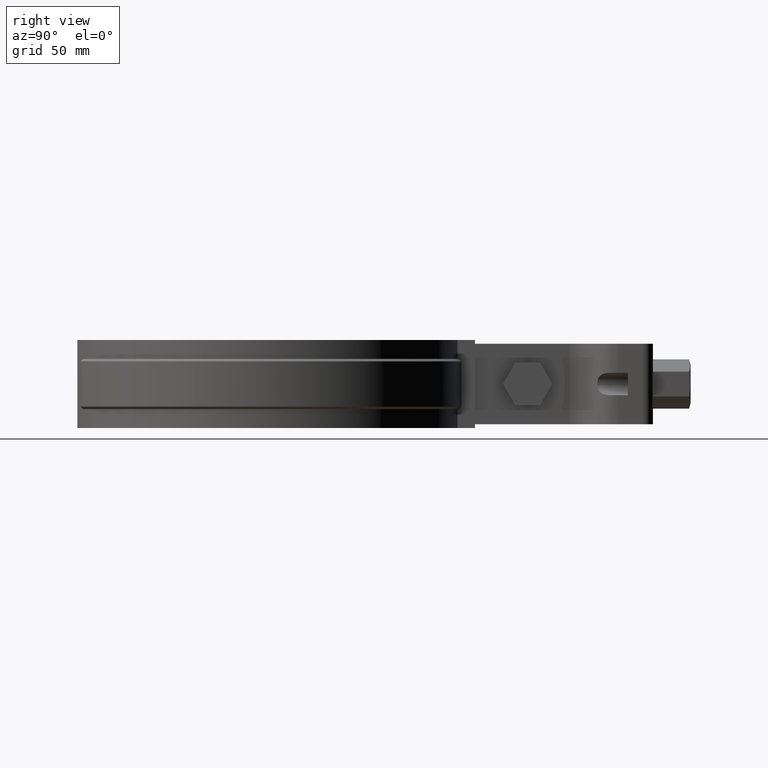
[diagram: clean part render]
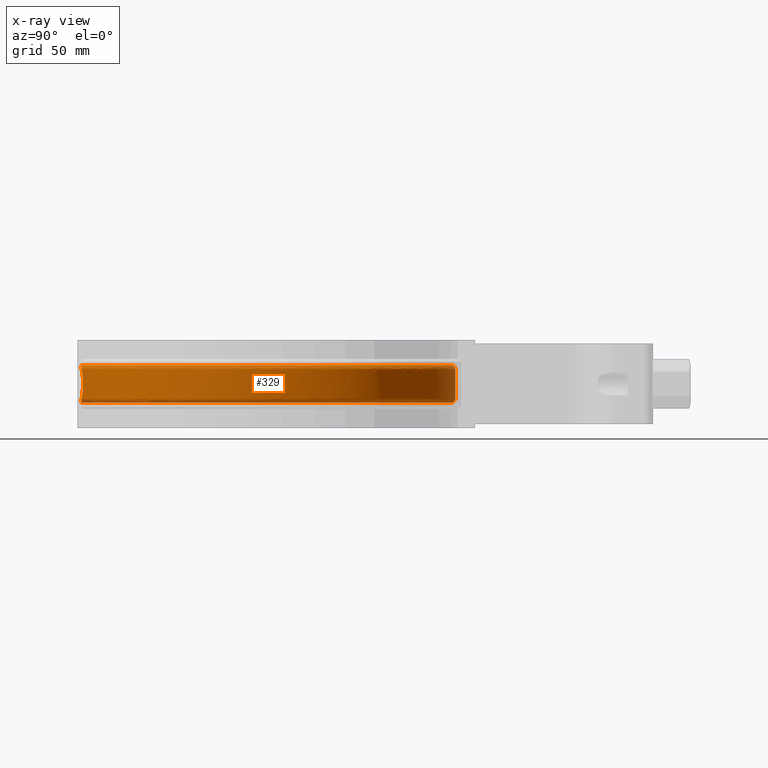
[diagram: x-ray — body ghosted, one internal face saturated and labeled with its STEP entity id]
A machine part, right view, then the same camera in x-ray: the body is ghosted and one INTERNAL B-rep face — a face not visible from any outside direction — is saturated and labeled: STEP entity #329.
In plain terms, the highlighted face is a freeform B-spline surface patch.
Its self-contained STEP definition (entity closure, byte-faithful):
#329 = ADVANCED_FACE( '', ( #522, #523 ), #524, .F. );
#522 = FACE_OUTER_BOUND( '', #903, .T. );
#523 = FACE_BOUND( '', #904, .T. );
#524 = B_SPLINE_SURFACE_WITH_KNOTS( '', 3, 3, ( ( #905, #906, #907, #908, #909, #910, #911, #912, #913, #914, #915, #916, #917, #918, #919, #920, #921 ), ( #922, #923, #924, #925, #926, #927, #928, #929, #930, #931, #932, #933, #934, #935, #936, #937, #938 ), ( #939, #940, #941, #942, #943, #944, #945, #946, #947, #948, #949, #950, #951, #952, #953, #954, #955 ), ( #956, #957, #958, #959, #960, #961, #962, #963, #964, #965, #966, #967, #968, #969, #970, #971, #972 ), ( #973, #974, #975, #976, #977, #978, #979, #980, #981, #982, #983, #984, #985, #986, #987, #988, #989 ), ( #990, #991, #992, #993, #994, #995, #996, #997, #998, #999, #1000, #1001, #1002, #1003, #1004, #1005, #1006 ), ( #1007, #1008, #1009, #1010, #1011, #1012, #1013, #1014, #1015, #1016, #1017, #1018, #1019, #1020, #1021, #1022, #1023 ), ( #1024, #1025, #1026, #1027, #1028, #1029, #1030, #1031, #1032, #1033, #1034, #1035, #1036, #1037, #1038, #1039, #1040 ), ( #1041, #1042, #1043, #1044, #1045, #1046, #1047, #1048, #1049, #1050, #1051, #1052, #1053, #1054, #1055, #1056, #1057 ), ( #1058, #1059, #1060, #1061, #1062, #1063, #1064, #1065, #1066, #1067, #1068, #1069, #1070, #1071, #1072, #1073, #1074 ), ( #1075, #1076, #1077, #1078, #1079, #1080, #1081, #1082, #1083, #1084, #1085, #1086, #1087, #1088, #1089, #1090, #1091 ), ( #1092, #1093, #1094, #1095, #1096, #1097, #1098, #1099, #1100, #1101, #1102, #1103, #1104, #1105, #1106, #1107, #1108 ), ( #1109, #1110, #1111, #1112, #1113, #1114, #1115, #1116, #1117, #1118, #1119, #1120, #1121, #1122, #1123, #1124, #1125 ), ( #1126, #1127, #1128, #1129, #1130, #1131, #1132, #1133, #1134, #1135, #1136, #1137, #1138, #1139, #1140, #1141, #1142 ), ( #1143, #1144, #1145, #1146, #1147, #1148, #1149, #1150, #1151, #1152, #1153, #1154, #1155, #1156, #1157, #1158, #1159 ), ( #1160, #1161, #1162, #1163, #1164, #1165, #1166, #1167, #1168, #1169, #1170, #1171, #1172, #1173, #1174, #1175, #1176 ), ( #1177, #1178, #1179, #1180, #1181, #1182, #1183, #1184, #1185, #1186, #1187, #1188, #1189, #1190, #1191, #1192, #1193 ), ( #1194, #1195, #1196, #1197, #1198, #1199, #1200, #1201, #1202, #1203, #1204, #1205, #1206, #1207, #1208, #1209, #1210 ), ( #1211, #1212, #1213, #1214, #1215, #1216, #1217, #1218, #1219, #1220, #1221, #1222, #1223, #1224, #1225, #1226, #1227 ), ( #1228, #1229, #1230, #1231, #1232, #1233, #1234, #1235, #1236, #1237, #1238, #1239, #1240, #1241, #1242, #1243, #1244 ), ( #1245, #1246, #1247, #1248, #1249, #1250, #1251, #1252, #1253, #1254, #1255, #1256, #1257, #1258, #1259, #1260, #1261 ), ( #1262, #1263, #1264, #1265, #1266, #1267, #1268, #1269, #1270, #1271, #1272, #1273, #1274, #1275, #1276, #1277, #1278 ) ), .UNSPECIFIED., .F., .F., .F., ( 4, 3, 1, 1, 1, 3, 3, 1, 1, 1, 3, 4 ), ( 4, 1, 1, 1, 1, 1, 1, 1, 1, 1, 1, 1, 1, 1, 4 ), ( 0.000000000000000, 0.0909090909090909, 0.181818181818182, 0.272727272727273, 0.363636363636364, 0.454545454545455, 0.545454545454545, 0.636363636363636, 0.727272727272727, 0.818181818181818, 0.909090909090909, 1.00000000000000 ), ( 2.93927675343958, 4.00000000000000, 5.00000000000000, 6.00000000000000, 7.00000000000000, 8.00000000000000, 9.00000000000000, 10.0000000000000, 11.0000000000000, 12.0000000000000, 13.0000000000000, 14.0000000000000, 15.0000000000000, 16.0000000000000, 17.0000000000000 ), .UNSPECIFIED. );
#903 = EDGE_LOOP( '', ( #2505, #2506, #2507, #2508, #2509, #2510, #2511, #2512, #2513, #2514, #2515, #2516 ) );
#904 = EDGE_LOOP( '', ( #2517, #2518, #2519, #2520, #2521, #2522, #2523, #2524, #2525, #2526 ) );
#905 = CARTESIAN_POINT( '', ( -4.61408278539141, 70.8624171730569, -26.5000000000000 ) );
#906 = CARTESIAN_POINT( '', ( -15.6052744550126, 70.1472941383269, -26.5000000000000 ) );
#907 = CARTESIAN_POINT( '', ( -36.6617611339115, 63.6807156917407, -26.5000000000000 ) );
#908 = CARTESIAN_POINT( '', ( -60.4969619260765, 41.4439888512903, -26.5000000000000 ) );
#909 = CARTESIAN_POINT( '', ( -72.3802217986226, 11.7823910310343, -26.5000000000000 ) );
#910 = CARTESIAN_POINT( '', ( -70.5192778564034, -20.1169506966164, -26.5000000000000 ) );
#911 = CARTESIAN_POINT( '', ( -55.2698527498513, -48.1966426214465, -26.5000000000000 ) );
#912 = CARTESIAN_POINT( '', ( -29.5266031782373, -67.1256351168169, -26.5000000000000 ) );
#913 = CARTESIAN_POINT( '', ( 1.82261616750916, -73.3099539517817, -26.5000000000000 ) );
#914 = CARTESIAN_POINT( '', ( 32.8257890665060, -65.5754380062658, -26.5000000000000 ) );
#915 = CARTESIAN_POINT( '', ( 57.5965972162112, -45.3906027783521, -26.5000000000000 ) );
#916 = CARTESIAN_POINT( '', ( 71.4318266744617, -16.5877122940593, -26.5000000000000 ) );
#917 = CARTESIAN_POINT( '', ( 71.7052861561752, 15.3643128019334, -26.5000000000000 ) );
#918 = CARTESIAN_POINT( '', ( 58.3627979269206, 44.4001782011631, -26.5000000000000 ) );
#919 = CARTESIAN_POINT( '', ( 33.9460318401430, 65.0025488558879, -26.5000000000000 ) );
#920 = CARTESIAN_POINT( '', ( 13.3549246916386, 70.5185901661193, -26.5000000000000 ) );
#921 = CARTESIAN_POINT( '', ( 2.97799040788178, 70.9496140061351, -26.5000000000000 ) );
#922 = CARTESIAN_POINT( '', ( -4.58317847313393, 72.0000761796201, -25.3619288125423 ) );
#923 = CARTESIAN_POINT( '', ( -15.7546006070130, 71.2897577749478, -25.3619288125423 ) );
#924 = CARTESIAN_POINT( '', ( -37.1520462050843, 64.7507535133130, -25.3619288125423 ) );
#925 = CARTESIAN_POINT( '', ( -61.4020090744283, 42.1941559292932, -25.3619288125423 ) );
#926 = CARTESIAN_POINT( '', ( -73.5179681451020, 12.0766046186175, -25.3619288125423 ) );
#927 = CARTESIAN_POINT( '', ( -71.6742434158291, -20.3345508184463, -25.3619288125423 ) );
#928 = CARTESIAN_POINT( '', ( -56.2226090221052, -48.8847422760475, -25.3619288125423 ) );
#929 = CARTESIAN_POINT( '', ( -30.0962954527366, -68.1535897998528, -25.3619288125423 ) );
#930 = CARTESIAN_POINT( '', ( 1.74416083732159, -74.4825932048340, -25.3619288125423 ) );
#931 = CARTESIAN_POINT( '', ( 33.2534664050969, -66.6701216190303, -25.3619288125423 ) );
#932 = CARTESIAN_POINT( '', ( 58.4491977296035, -46.1994896762213, -25.3619288125423 ) );
#933 = CARTESIAN_POINT( '', ( 72.5475111608291, -16.9572300654301, -25.3619288125423 ) );
#934 = CARTESIAN_POINT( '', ( 72.8720854100233, 15.5043409607623, -25.3619288125423 ) );
#935 = CARTESIAN_POINT( '', ( 59.3597111215706, 45.0230947830519, -25.3619288125423 ) );
#936 = CARTESIAN_POINT( '', ( 34.5818006473789, 65.9903515204438, -25.3619288125423 ) );
#937 = CARTESIAN_POINT( '', ( 13.6743882856698, 71.6239562096893, -25.3619288125423 ) );
#938 = CARTESIAN_POINT( '', ( 3.12959689003598, 72.0775419747086, -25.3619288125423 ) );
#939 = CARTESIAN_POINT( '', ( -4.55227416087646, 73.1377351861834, -24.2238576250846 ) );
#940 = CARTESIAN_POINT( '', ( -15.9039267590134, 72.4322214115685, -24.2238576250846 ) );
#941 = CARTESIAN_POINT( '', ( -37.6423312762570, 65.8207913348853, -24.2238576250846 ) );
#942 = CARTESIAN_POINT( '', ( -62.3070562227800, 42.9443230072962, -24.2238576250846 ) );
#943 = CARTESIAN_POINT( '', ( -74.6557144915813, 12.3708182062007, -24.2238576250846 ) );
#944 = CARTESIAN_POINT( '', ( -72.8292089752548, -20.5521509402763, -24.2238576250846 ) );
#945 = CARTESIAN_POINT( '', ( -57.1753652943592, -49.5728419306485, -24.2238576250846 ) );
#946 = CARTESIAN_POINT( '', ( -30.6659877272358, -69.1815444828886, -24.2238576250846 ) );
#947 = CARTESIAN_POINT( '', ( 1.66570550713401, -75.6552324578863, -24.2238576250846 ) );
#948 = CARTESIAN_POINT( '', ( 33.6811437436878, -67.7648052317949, -24.2238576250846 ) );
#949 = CARTESIAN_POINT( '', ( 59.3017982429958, -47.0083765740904, -24.2238576250846 ) );
#950 = CARTESIAN_POINT( '', ( 73.6631956471966, -17.3267478368009, -24.2238576250846 ) );
#951 = CARTESIAN_POINT( '', ( 74.0388846638715, 15.6443691195912, -24.2238576250846 ) );
#952 = CARTESIAN_POINT( '', ( 60.3566243162205, 45.6460113649407, -24.2238576250846 ) );
#953 = CARTESIAN_POINT( '', ( 35.2175694546148, 66.9781541849998, -24.2238576250846 ) );
#954 = CARTESIAN_POINT( '', ( 13.9938518797011, 72.7293222532593, -24.2238576250846 ) );
#955 = CARTESIAN_POINT( '', ( 3.28120337219018, 73.2054699432820, -24.2238576250846 ) );
#956 = CARTESIAN_POINT( '', ( -4.52136984861898, 74.2753941927466, -23.0857864376269 ) );
#957 = CARTESIAN_POINT( '', ( -16.0532529110138, 73.5746850481894, -23.0857864376269 ) );
#958 = CARTESIAN_POINT( '', ( -38.1326163474298, 66.8908291564576, -23.0857864376269 ) );
#959 = CARTESIAN_POINT( '', ( -63.2121033711318, 43.6944900852991, -23.0857864376269 ) );
#960 = CARTESIAN_POINT( '', ( -75.7934608380606, 12.6650317937838, -23.0857864376269 ) );
#961 = CARTESIAN_POINT( '', ( -73.9841745346804, -20.7697510621062, -23.0857864376269 ) );
#962 = CARTESIAN_POINT( '', ( -58.1281215666131, -50.2609415852494, -23.0857864376269 ) );
#963 = CARTESIAN_POINT( '', ( -31.2356800017350, -70.2094991659245, -23.0857864376269 ) );
#964 = CARTESIAN_POINT( '', ( 1.58725017694644, -76.8278717109386, -23.0857864376269 ) );
#965 = CARTESIAN_POINT( '', ( 34.1088210822787, -68.8594888445595, -23.0857864376269 ) );
#966 = CARTESIAN_POINT( '', ( 60.1543987563881, -47.8172634719595, -23.0857864376269 ) );
#967 = CARTESIAN_POINT( '', ( 74.7788801335641, -17.6962656081718, -23.0857864376269 ) );
#968 = CARTESIAN_POINT( '', ( 75.2056839177196, 15.7843972784200, -23.0857864376269 ) );
#969 = CARTESIAN_POINT( '', ( 61.3535375108704, 46.2689279468294, -23.0857864376269 ) );
#970 = CARTESIAN_POINT( '', ( 35.8533382618507, 67.9659568495558, -23.0857864376269 ) );
#971 = CARTESIAN_POINT( '', ( 14.3133154737323, 73.8346882968293, -23.0857864376269 ) );
#972 = CARTESIAN_POINT( '', ( 3.43280985434438, 74.3333979118554, -23.0857864376269 ) );
#973 = CARTESIAN_POINT( '', ( -4.51885640188860, 74.3679199634714, -22.9932271442431 ) );
#974 = CARTESIAN_POINT( '', ( -16.0653976021941, 73.6676015793235, -22.9932271442431 ) );
#975 = CARTESIAN_POINT( '', ( -38.1724912166335, 66.9778552983634, -22.9932271442431 ) );
#976 = CARTESIAN_POINT( '', ( -63.2857108268460, 43.7555011498309, -22.9932271442431 ) );
#977 = CARTESIAN_POINT( '', ( -75.8859937121379, 12.6889601754797, -22.9932271442431 ) );
#978 = CARTESIAN_POINT( '', ( -74.0781078467977, -20.7874484730755, -22.9932271442431 ) );
#979 = CARTESIAN_POINT( '', ( -58.2056092038529, -50.3169047082152, -22.9932271442431 ) );
#980 = CARTESIAN_POINT( '', ( -31.2820130562531, -70.2931026875152, -22.9932271442431 ) );
#981 = CARTESIAN_POINT( '', ( 1.58086940744416, -76.9232424239949, -22.9932271442431 ) );
#982 = CARTESIAN_POINT( '', ( 34.1436040665880, -68.9485194278771, -22.9932271442431 ) );
#983 = CARTESIAN_POINT( '', ( 60.2237407289536, -47.8830502175685, -22.9932271442431 ) );
#984 = CARTESIAN_POINT( '', ( 74.8696187172621, -17.7263184767338, -22.9932271442431 ) );
#985 = CARTESIAN_POINT( '', ( 75.3005796638268, 15.7957857641122, -22.9932271442431 ) );
#986 = CARTESIAN_POINT( '', ( 61.4346164292006, 46.3195897325702, -22.9932271442431 ) );
#987 = CARTESIAN_POINT( '', ( 35.9050453186691, 68.0462948087639, -22.9932271442431 ) );
#988 = CARTESIAN_POINT( '', ( 14.3392974376474, 73.9245876819037, -22.9932271442431 ) );
#989 = CARTESIAN_POINT( '', ( 3.44514000470337, 74.4251322575709, -22.9932271442431 ) );
#990 = CARTESIAN_POINT( '', ( -4.51432461421930, 74.5347455189103, -22.7898759680773 ) );
#991 = CARTESIAN_POINT( '', ( -16.0872946891993, 73.8351316824989, -22.7898759680773 ) );
#992 = CARTESIAN_POINT( '', ( -38.2443862913878, 67.1347649284850, -22.7898759680773 ) );
#993 = CARTESIAN_POINT( '', ( -63.4184263350528, 43.8655051481623, -22.7898759680773 ) );
#994 = CARTESIAN_POINT( '', ( -76.0528320750436, 12.7321034590850, -22.7898759680773 ) );
#995 = CARTESIAN_POINT( '', ( -74.2474712235673, -20.8193572093299, -22.7898759680773 ) );
#996 = CARTESIAN_POINT( '', ( -58.3453207460634, -50.4178071811124, -22.7898759680773 ) );
#997 = CARTESIAN_POINT( '', ( -31.3655523501665, -70.4438412743625, -22.7898759680773 ) );
#998 = CARTESIAN_POINT( '', ( 1.56936477032515, -77.0951974593712, -22.7898759680773 ) );
#999 = CARTESIAN_POINT( '', ( 34.2063183853315, -69.1090431003269, -22.7898759680773 ) );
#1000 = CARTESIAN_POINT( '', ( 60.3487654977055, -48.0016648509918, -22.7898759680773 ) );
#1001 = CARTESIAN_POINT( '', ( 75.0332219437640, -17.7805043154586, -22.7898759680773 ) );
#1002 = CARTESIAN_POINT( '', ( 75.4716783256278, 15.8163193996207, -22.7898759680772 ) );
#1003 = CARTESIAN_POINT( '', ( 61.5808031129628, 46.4109338033032, -22.7898759680773 ) );
#1004 = CARTESIAN_POINT( '', ( 35.9982740311268, 68.1911455304897, -22.7898759680773 ) );
#1005 = CARTESIAN_POINT( '', ( 14.3861433653017, 74.0866778188585, -22.7898759680773 ) );
#1006 = CARTESIAN_POINT( '', ( 3.46737147779644, 74.5905308601105, -22.7898759680773 ) );
#1007 = CARTESIAN_POINT( '', ( -4.50927348117781, 74.7206893752282, -22.4418734431229 ) );
#1008 = CARTESIAN_POINT( '', ( -16.1117011944806, 74.0218608281134, -22.4418734431229 ) );
#1009 = CARTESIAN_POINT( '', ( -38.3245205814545, 67.3096564889625, -22.4418734431229 ) );
#1010 = CARTESIAN_POINT( '', ( -63.5663511138689, 43.9881156655158, -22.4418734431229 ) );
#1011 = CARTESIAN_POINT( '', ( -76.2387902065711, 12.7801909868422, -22.4418734431229 ) );
#1012 = CARTESIAN_POINT( '', ( -74.4362437369434, -20.8549227043990, -22.4418734431229 ) );
#1013 = CARTESIAN_POINT( '', ( -58.5010433082476, -50.5302731331854, -22.4418734431229 ) );
#1014 = CARTESIAN_POINT( '', ( -31.4586652933452, -70.6118545865949, -22.4418734431229 ) );
#1015 = CARTESIAN_POINT( '', ( 1.55654169543223, -77.2868586368632, -22.4418734431229 ) );
#1016 = CARTESIAN_POINT( '', ( 34.2762197996733, -69.2879628743815, -22.4418734431229 ) );
#1017 = CARTESIAN_POINT( '', ( 60.4881181740735, -48.1338727869788, -22.4418734431229 ) );
#1018 = CARTESIAN_POINT( '', ( 75.2155741904674, -17.8408998812567, -22.4418734431229 ) );
#1019 = CARTESIAN_POINT( '', ( 75.6623849886592, 15.8392062011100, -22.4418734431229 ) );
#1020 = CARTESIAN_POINT( '', ( 61.7437428715003, 46.5127459550398, -22.4418734431229 ) );
#1021 = CARTESIAN_POINT( '', ( 36.1021868055715, 68.3525962250027, -22.4418734431229 ) );
#1022 = CARTESIAN_POINT( '', ( 14.4383578621629, 74.2673435751163, -22.4418734431229 ) );
#1023 = CARTESIAN_POINT( '', ( 3.49215068999615, 74.7748842339382, -22.4418734431229 ) );
#1024 = CARTESIAN_POINT( '', ( -4.50616300880884, 74.8351930365859, -22.0642686993349 ) );
#1025 = CARTESIAN_POINT( '', ( -16.1267306462249, 74.1368480682324, -22.0642686993349 ) );
#1026 = CARTESIAN_POINT( '', ( -38.3738670336291, 67.4173541801464, -22.0642686993349 ) );
#1027 = CARTESIAN_POINT( '', ( -63.6574427428982, 44.0636188493045, -22.0642686993349 ) );
#1028 = CARTESIAN_POINT( '', ( -76.3533026585596, 12.8098031402248, -22.0642686993349 ) );
#1029 = CARTESIAN_POINT( '', ( -74.5524892767171, -20.8768238281256, -22.0642686993349 ) );
#1030 = CARTESIAN_POINT( '', ( -58.5969367885657, -50.5995293245189, -22.0642686993349 ) );
#1031 = CARTESIAN_POINT( '', ( -31.5160039606445, -70.7153166734226, -22.0642686993349 ) );
#1032 = CARTESIAN_POINT( '', ( 1.54864528490176, -77.4048830072165, -22.0642686993349 ) );
#1033 = CARTESIAN_POINT( '', ( 34.3192648780894, -69.3981411272383, -22.0642686993349 ) );
#1034 = CARTESIAN_POINT( '', ( 60.5739311284787, -48.2152860319811, -22.0642686993349 ) );
#1035 = CARTESIAN_POINT( '', ( 75.3278661495449, -17.8780912870422, -22.0642686993349 ) );
#1036 = CARTESIAN_POINT( '', ( 75.7798215719099, 15.8532998238797, -22.0642686993349 ) );
#1037 = CARTESIAN_POINT( '', ( 61.8440806793890, 46.5754415685191, -22.0642686993349 ) );
#1038 = CARTESIAN_POINT( '', ( 36.1661759761276, 68.4520170717926, -22.0642686993349 ) );
#1039 = CARTESIAN_POINT( '', ( 14.4705113905718, 74.3785969985052, -22.0642686993349 ) );
#1040 = CARTESIAN_POINT( '', ( 3.50740965352747, 74.8884084810143, -22.0642686993349 ) );
#1041 = CARTESIAN_POINT( '', ( -4.50546282348372, 74.8609684731900, -21.8024714832808 ) );
#1042 = CARTESIAN_POINT( '', ( -16.1301138627616, 74.1627323612132, -21.8024714832808 ) );
#1043 = CARTESIAN_POINT( '', ( -38.3849752054952, 67.4415975534900, -21.8024714832808 ) );
#1044 = CARTESIAN_POINT( '', ( -63.6779479955807, 44.0806150527802, -21.8024714832808 ) );
#1045 = CARTESIAN_POINT( '', ( -76.3790800739854, 12.8164690072650, -21.8024714832808 ) );
#1046 = CARTESIAN_POINT( '', ( -74.5786568202298, -20.8817538977800, -21.8024714832808 ) );
#1047 = CARTESIAN_POINT( '', ( -58.6185229657532, -50.6151192938525, -21.8024714832808 ) );
#1048 = CARTESIAN_POINT( '', ( -31.5289112263722, -70.7386065877217, -21.8024714832808 ) );
#1049 = CARTESIAN_POINT( '', ( 1.54686775720863, -77.4314509757836, -21.8024714832808 ) );
#1050 = CARTESIAN_POINT( '', ( 34.3289545742675, -69.4229428893652, -21.8024714832808 ) );
#1051 = CARTESIAN_POINT( '', ( 60.5932481209648, -48.2336126244272, -21.8024714832808 ) );
#1052 = CARTESIAN_POINT( '', ( 75.3531437191705, -17.8864632876462, -21.8024714832808 ) );
#1053 = CARTESIAN_POINT( '', ( 75.8062572261997, 15.8564723799003, -21.8024714832808 ) );
#1054 = CARTESIAN_POINT( '', ( 61.8666673004241, 46.5895547138232, -21.8024714832808 ) );
#1055 = CARTESIAN_POINT( '', ( 36.1805803086132, 68.4743972795795, -21.8024714832808 ) );
#1056 = CARTESIAN_POINT( '', ( 14.4777493358328, 74.4036407877390, -21.8024714832808 ) );
#1057 = CARTESIAN_POINT( '', ( 3.51084453449531, 74.9139634457974, -21.8024714832808 ) );
#1058 = CARTESIAN_POINT( '', ( -4.50546282348372, 74.8609684731900, -21.6715728752538 ) );
#1059 = CARTESIAN_POINT( '', ( -16.1301138627616, 74.1627323612132, -21.6715728752538 ) );
#1060 = CARTESIAN_POINT( '', ( -38.3849752054952, 67.4415975534900, -21.6715728752538 ) );
#1061 = CARTESIAN_POINT( '', ( -63.6779479955807, 44.0806150527802, -21.6715728752538 ) );
#1062 = CARTESIAN_POINT( '', ( -76.3790800739854, 12.8164690072650, -21.6715728752538 ) );
#1063 = CARTESIAN_POINT( '', ( -74.5786568202298, -20.8817538977800, -21.6715728752538 ) );
#1064 = CARTESIAN_POINT( '', ( -58.6185229657532, -50.6151192938525, -21.6715728752538 ) );
#1065 = CARTESIAN_POINT( '', ( -31.5289112263722, -70.7386065877217, -21.6715728752538 ) );
#1066 = CARTESIAN_POINT( '', ( 1.54686775720863, -77.4314509757836, -21.6715728752538 ) );
#1067 = CARTESIAN_POINT( '', ( 34.3289545742675, -69.4229428893652, -21.6715728752538 ) );
#1068 = CARTESIAN_POINT( '', ( 60.5932481209648, -48.2336126244272, -21.6715728752538 ) );
#1069 = CARTESIAN_POINT( '', ( 75.3531437191705, -17.8864632876462, -21.6715728752538 ) );
#1070 = CARTESIAN_POINT( '', ( 75.8062572261997, 15.8564723799003, -21.6715728752538 ) );
#1071 = CARTESIAN_POINT( '', ( 61.8666673004241, 46.5895547138232, -21.6715728752538 ) );
#1072 = CARTESIAN_POINT( '', ( 36.1805803086132, 68.4743972795795, -21.6715728752538 ) );
#1073 = CARTESIAN_POINT( '', ( 14.4777493358328, 74.4036407877390, -21.6715728752538 ) );
#1074 = CARTESIAN_POINT( '', ( 3.51084453449531, 74.9139634457974, -21.6715728752538 ) );
#1075 = CARTESIAN_POINT( '', ( -4.50546282348372, 74.8609684731900, -17.8905242917513 ) );
#1076 = CARTESIAN_POINT( '', ( -16.1301138627616, 74.1627323612132, -17.8905242917513 ) );
#1077 = CARTESIAN_POINT( '', ( -38.3849752054952, 67.4415975534900, -17.8905242917513 ) );
#1078 = CARTESIAN_POINT( '', ( -63.6779479955807, 44.0806150527802, -17.8905242917513 ) );
#1079 = CARTESIAN_POINT( '', ( -76.3790800739854, 12.8164690072650, -17.8905242917513 ) );
#1080 = CARTESIAN_POINT( '', ( -74.5786568202298, -20.8817538977800, -17.8905242917513 ) );
#1081 = CARTESIAN_POINT( '', ( -58.6185229657532, -50.6151192938525, -17.8905242917513 ) );
#1082 = CARTESIAN_POINT( '', ( -31.5289112263722, -70.7386065877217, -17.8905242917513 ) );
#1083 = CARTESIAN_POINT( '', ( 1.54686775720863, -77.4314509757836, -17.8905242917513 ) );
#1084 = CARTESIAN_POINT( '', ( 34.3289545742675, -69.4229428893652, -17.8905242917513 ) );
#1085 = CARTESIAN_POINT( '', ( 60.5932481209648, -48.2336126244272, -17.8905242917513 ) );
#1086 = CARTESIAN_POINT( '', ( 75.3531437191705, -17.8864632876462, -17.8905242917513 ) );
#1087 = CARTESIAN_POINT( '', ( 75.8062572261997, 15.8564723799003, -17.8905242917512 ) );
#1088 = CARTESIAN_POINT( '', ( 61.8666673004241, 46.5895547138232, -17.8905242917513 ) );
#1089 = CARTESIAN_POINT( '', ( 36.1805803086132, 68.4743972795795, -17.8905242917513 ) );
#1090 = CARTESIAN_POINT( '', ( 14.4777493358328, 74.4036407877390, -17.8905242917513 ) );
#1091 = CARTESIAN_POINT( '', ( 3.51084453449531, 74.9139634457974, -17.8905242917513 ) );
#1092 = CARTESIAN_POINT( '', ( -4.50546282348372, 74.8609684731900, -14.1094757082487 ) );
#1093 = CARTESIAN_POINT( '', ( -16.1301138627616, 74.1627323612132, -14.1094757082487 ) );
#1094 = CARTESIAN_POINT( '', ( -38.3849752054952, 67.4415975534900, -14.1094757082487 ) );
#1095 = CARTESIAN_POINT( '', ( -63.6779479955807, 44.0806150527802, -14.1094757082487 ) );
#1096 = CARTESIAN_POINT( '', ( -76.3790800739854, 12.8164690072650, -14.1094757082487 ) );
#1097 = CARTESIAN_POINT( '', ( -74.5786568202298, -20.8817538977800, -14.1094757082487 ) );
#1098 = CARTESIAN_POINT( '', ( -58.6185229657532, -50.6151192938525, -14.1094757082487 ) );
#1099 = CARTESIAN_POINT( '', ( -31.5289112263722, -70.7386065877217, -14.1094757082487 ) );
#1100 = CARTESIAN_POINT( '', ( 1.54686775720863, -77.4314509757836, -14.1094757082487 ) );
#1101 = CARTESIAN_POINT( '', ( 34.3289545742675, -69.4229428893652, -14.1094757082487 ) );
#1102 = CARTESIAN_POINT( '', ( 60.5932481209648, -48.2336126244272, -14.1094757082487 ) );
#1103 = CARTESIAN_POINT( '', ( 75.3531437191705, -17.8864632876462, -14.1094757082487 ) );
#1104 = CARTESIAN_POINT( '', ( 75.8062572261997, 15.8564723799003, -14.1094757082487 ) );
#1105 = CARTESIAN_POINT( '', ( 61.8666673004241, 46.5895547138232, -14.1094757082487 ) );
#1106 = CARTESIAN_POINT( '', ( 36.1805803086132, 68.4743972795795, -14.1094757082487 ) );
#1107 = CARTESIAN_POINT( '', ( 14.4777493358328, 74.4036407877390, -14.1094757082487 ) );
#1108 = CARTESIAN_POINT( '', ( 3.51084453449531, 74.9139634457974, -14.1094757082487 ) );
#1109 = CARTESIAN_POINT( '', ( -4.50546282348372, 74.8609684731900, -10.3284271247462 ) );
#1110 = CARTESIAN_POINT( '', ( -16.1301138627616, 74.1627323612132, -10.3284271247462 ) );
#1111 = CARTESIAN_POINT( '', ( -38.3849752054952, 67.4415975534900, -10.3284271247462 ) );
#1112 = CARTESIAN_POINT( '', ( -63.6779479955807, 44.0806150527802, -10.3284271247462 ) );
#1113 = CARTESIAN_POINT( '', ( -76.3790800739854, 12.8164690072650, -10.3284271247462 ) );
#1114 = CARTESIAN_POINT( '', ( -74.5786568202298, -20.8817538977800, -10.3284271247462 ) );
#1115 = CARTESIAN_POINT( '', ( -58.6185229657532, -50.6151192938525, -10.3284271247462 ) );
#1116 = CARTESIAN_POINT( '', ( -31.5289112263722, -70.7386065877217, -10.3284271247462 ) );
#1117 = CARTESIAN_POINT( '', ( 1.54686775720863, -77.4314509757836, -10.3284271247462 ) );
#1118 = CARTESIAN_POINT( '', ( 34.3289545742675, -69.4229428893652, -10.3284271247462 ) );
#1119 = CARTESIAN_POINT( '', ( 60.5932481209648, -48.2336126244272, -10.3284271247462 ) );
#1120 = CARTESIAN_POINT( '', ( 75.3531437191705, -17.8864632876462, -10.3284271247462 ) );
#1121 = CARTESIAN_POINT( '', ( 75.8062572261997, 15.8564723799003, -10.3284271247462 ) );
#1122 = CARTESIAN_POINT( '', ( 61.8666673004241, 46.5895547138232, -10.3284271247462 ) );
#1123 = CARTESIAN_POINT( '', ( 36.1805803086132, 68.4743972795795, -10.3284271247462 ) );
#1124 = CARTESIAN_POINT( '', ( 14.4777493358328, 74.4036407877390, -10.3284271247462 ) );
#1125 = CARTESIAN_POINT( '', ( 3.51084453449531, 74.9139634457974, -10.3284271247462 ) );
#1126 = CARTESIAN_POINT( '', ( -4.50546282348372, 74.8609684731900, -10.1975285167192 ) );
#1127 = CARTESIAN_POINT( '', ( -16.1301138627616, 74.1627323612132, -10.1975285167192 ) );
#1128 = CARTESIAN_POINT( '', ( -38.3849752054952, 67.4415975534900, -10.1975285167192 ) );
#1129 = CARTESIAN_POINT( '', ( -63.6779479955807, 44.0806150527802, -10.1975285167192 ) );
#1130 = CARTESIAN_POINT( '', ( -76.3790800739854, 12.8164690072650, -10.1975285167192 ) );
#1131 = CARTESIAN_POINT( '', ( -74.5786568202298, -20.8817538977800, -10.1975285167192 ) );
#1132 = CARTESIAN_POINT( '', ( -58.6185229657532, -50.6151192938525, -10.1975285167192 ) );
#1133 = CARTESIAN_POINT( '', ( -31.5289112263722, -70.7386065877217, -10.1975285167192 ) );
#1134 = CARTESIAN_POINT( '', ( 1.54686775720863, -77.4314509757836, -10.1975285167192 ) );
#1135 = CARTESIAN_POINT( '', ( 34.3289545742675, -69.4229428893652, -10.1975285167192 ) );
#1136 = CARTESIAN_POINT( '', ( 60.5932481209648, -48.2336126244272, -10.1975285167192 ) );
#1137 = CARTESIAN_POINT( '', ( 75.3531437191705, -17.8864632876462, -10.1975285167192 ) );
#1138 = CARTESIAN_POINT( '', ( 75.8062572261997, 15.8564723799003, -10.1975285167192 ) );
#1139 = CARTESIAN_POINT( '', ( 61.8666673004241, 46.5895547138232, -10.1975285167192 ) );
#1140 = CARTESIAN_POINT( '', ( 36.1805803086132, 68.4743972795795, -10.1975285167192 ) );
#1141 = CARTESIAN_POINT( '', ( 14.4777493358328, 74.4036407877390, -10.1975285167192 ) );
#1142 = CARTESIAN_POINT( '', ( 3.51084453449531, 74.9139634457974, -10.1975285167192 ) );
#1143 = CARTESIAN_POINT( '', ( -4.50616300880884, 74.8351930365859, -9.93573130066510 ) );
#1144 = CARTESIAN_POINT( '', ( -16.1267306462249, 74.1368480682324, -9.93573130066510 ) );
#1145 = CARTESIAN_POINT( '', ( -38.3738670336291, 67.4173541801463, -9.93573130066510 ) );
#1146 = CARTESIAN_POINT( '', ( -63.6574427428982, 44.0636188493045, -9.93573130066510 ) );
#1147 = CARTESIAN_POINT( '', ( -76.3533026585596, 12.8098031402248, -9.93573130066510 ) );
#1148 = CARTESIAN_POINT( '', ( -74.5524892767171, -20.8768238281256, -9.93573130066510 ) );
#1149 = CARTESIAN_POINT( '', ( -58.5969367885657, -50.5995293245189, -9.93573130066510 ) );
#1150 = CARTESIAN_POINT( '', ( -31.5160039606445, -70.7153166734226, -9.93573130066510 ) );
#1151 = CARTESIAN_POINT( '', ( 1.54864528490176, -77.4048830072165, -9.93573130066510 ) );
#1152 = CARTESIAN_POINT( '', ( 34.3192648780894, -69.3981411272383, -9.93573130066510 ) );
#1153 = CARTESIAN_POINT( '', ( 60.5739311284787, -48.2152860319811, -9.93573130066510 ) );
#1154 = CARTESIAN_POINT( '', ( 75.3278661495449, -17.8780912870422, -9.93573130066510 ) );
#1155 = CARTESIAN_POINT( '', ( 75.7798215719099, 15.8532998238797, -9.93573130066509 ) );
#1156 = CARTESIAN_POINT( '', ( 61.8440806793889, 46.5754415685191, -9.93573130066510 ) );
#1157 = CARTESIAN_POINT( '', ( 36.1661759761276, 68.4520170717926, -9.93573130066510 ) );
#1158 = CARTESIAN_POINT( '', ( 14.4705113905718, 74.3785969985052, -9.93573130066510 ) );
#1159 = CARTESIAN_POINT( '', ( 3.50740965352747, 74.8884084810143, -9.93573130066510 ) );
#1160 = CARTESIAN_POINT( '', ( -4.50927348117781, 74.7206893752281, -9.55812655687708 ) );
#1161 = CARTESIAN_POINT( '', ( -16.1117011944806, 74.0218608281134, -9.55812655687708 ) );
#1162 = CARTESIAN_POINT( '', ( -38.3245205814545, 67.3096564889625, -9.55812655687708 ) );
#1163 = CARTESIAN_POINT( '', ( -63.5663511138689, 43.9881156655158, -9.55812655687707 ) );
#1164 = CARTESIAN_POINT( '', ( -76.2387902065711, 12.7801909868422, -9.55812655687708 ) );
#1165 = CARTESIAN_POINT( '', ( -74.4362437369434, -20.8549227043990, -9.55812655687708 ) );
#1166 = CARTESIAN_POINT( '', ( -58.5010433082476, -50.5302731331854, -9.55812655687707 ) );
#1167 = CARTESIAN_POINT( '', ( -31.4586652933452, -70.6118545865948, -9.55812655687708 ) );
#1168 = CARTESIAN_POINT( '', ( 1.55654169543223, -77.2868586368632, -9.55812655687708 ) );
#1169 = CARTESIAN_POINT( '', ( 34.2762197996733, -69.2879628743815, -9.55812655687708 ) );
#1170 = CARTESIAN_POINT( '', ( 60.4881181740735, -48.1338727869788, -9.55812655687708 ) );
#1171 = CARTESIAN_POINT( '', ( 75.2155741904675, -17.8408998812567, -9.55812655687707 ) );
#1172 = CARTESIAN_POINT( '', ( 75.6623849886592, 15.8392062011100, -9.55812655687707 ) );
#1173 = CARTESIAN_POINT( '', ( 61.7437428715003, 46.5127459550398, -9.55812655687708 ) );
#1174 = CARTESIAN_POINT( '', ( 36.1021868055715, 68.3525962250027, -9.55812655687708 ) );
#1175 = CARTESIAN_POINT( '', ( 14.4383578621629, 74.2673435751163, -9.55812655687708 ) );
#1176 = CARTESIAN_POINT( '', ( 3.49215068999615, 74.7748842339382, -9.55812655687708 ) );
#1177 = CARTESIAN_POINT( '', ( -4.51432461421930, 74.5347455189103, -9.21012403192273 ) );
#1178 = CARTESIAN_POINT( '', ( -16.0872946891993, 73.8351316824988, -9.21012403192273 ) );
#1179 = CARTESIAN_POINT( '', ( -38.2443862913878, 67.1347649284850, -9.21012403192273 ) );
#1180 = CARTESIAN_POINT( '', ( -63.4184263350528, 43.8655051481623, -9.21012403192273 ) );
#1181 = CARTESIAN_POINT( '', ( -76.0528320750436, 12.7321034590850, -9.21012403192273 ) );
#1182 = CARTESIAN_POINT( '', ( -74.2474712235672, -20.8193572093299, -9.21012403192274 ) );
#1183 = CARTESIAN_POINT( '', ( -58.3453207460634, -50.4178071811124, -9.21012403192273 ) );
#1184 = CARTESIAN_POINT( '', ( -31.3655523501665, -70.4438412743624, -9.21012403192273 ) );
#1185 = CARTESIAN_POINT( '', ( 1.56936477032515, -77.0951974593712, -9.21012403192273 ) );
#1186 = CARTESIAN_POINT( '', ( 34.2063183853315, -69.1090431003269, -9.21012403192273 ) );
#1187 = CARTESIAN_POINT( '', ( 60.3487654977054, -48.0016648509918, -9.21012403192273 ) );
#1188 = CARTESIAN_POINT( '', ( 75.0332219437640, -17.7805043154586, -9.21012403192273 ) );
#1189 = CARTESIAN_POINT( '', ( 75.4716783256278, 15.8163193996207, -9.21012403192272 ) );
#1190 = CARTESIAN_POINT( '', ( 61.5808031129628, 46.4109338033032, -9.21012403192274 ) );
#1191 = CARTESIAN_POINT( '', ( 35.9982740311268, 68.1911455304896, -9.21012403192273 ) );
#1192 = CARTESIAN_POINT( '', ( 14.3861433653017, 74.0866778188585, -9.21012403192273 ) );
#1193 = CARTESIAN_POINT( '', ( 3.46737147779644, 74.5905308601105, -9.21012403192273 ) );
#1194 = CARTESIAN_POINT( '', ( -4.51885640188860, 74.3679199634714, -9.00677285575691 ) );
#1195 = CARTESIAN_POINT( '', ( -16.0653976021941, 73.6676015793235, -9.00677285575690 ) );
#1196 = CARTESIAN_POINT( '', ( -38.1724912166335, 66.9778552983634, -9.00677285575691 ) );
#1197 = CARTESIAN_POINT( '', ( -63.2857108268460, 43.7555011498309, -9.00677285575690 ) );
#1198 = CARTESIAN_POINT( '', ( -75.8859937121379, 12.6889601754797, -9.00677285575690 ) );
#1199 = CARTESIAN_POINT( '', ( -74.0781078467977, -20.7874484730755, -9.00677285575691 ) );
#1200 = CARTESIAN_POINT( '', ( -58.2056092038529, -50.3169047082152, -9.00677285575690 ) );
#1201 = CARTESIAN_POINT( '', ( -31.2820130562530, -70.2931026875152, -9.00677285575691 ) );
#1202 = CARTESIAN_POINT( '', ( 1.58086940744416, -76.9232424239949, -9.00677285575690 ) );
#1203 = CARTESIAN_POINT( '', ( 34.1436040665880, -68.9485194278771, -9.00677285575691 ) );
#1204 = CARTESIAN_POINT( '', ( 60.2237407289536, -47.8830502175685, -9.00677285575691 ) );
#1205 = CARTESIAN_POINT( '', ( 74.8696187172621, -17.7263184767338, -9.00677285575690 ) );
#1206 = CARTESIAN_POINT( '', ( 75.3005796638268, 15.7957857641122, -9.00677285575690 ) );
#1207 = CARTESIAN_POINT( '', ( 61.4346164292006, 46.3195897325701, -9.00677285575691 ) );
#1208 = CARTESIAN_POINT( '', ( 35.9050453186691, 68.0462948087639, -9.00677285575691 ) );
#1209 = CARTESIAN_POINT( '', ( 14.3392974376474, 73.9245876819036, -9.00677285575691 ) );
#1210 = CARTESIAN_POINT( '', ( 3.44514000470337, 74.4251322575709, -9.00677285575691 ) );
#1211 = CARTESIAN_POINT( '', ( -4.52136984861898, 74.2753941927466, -8.91421356237311 ) );
#1212 = CARTESIAN_POINT( '', ( -16.0532529110138, 73.5746850481894, -8.91421356237311 ) );
#1213 = CARTESIAN_POINT( '', ( -38.1326163474298, 66.8908291564576, -8.91421356237311 ) );
#1214 = CARTESIAN_POINT( '', ( -63.2121033711318, 43.6944900852991, -8.91421356237310 ) );
#1215 = CARTESIAN_POINT( '', ( -75.7934608380606, 12.6650317937838, -8.91421356237311 ) );
#1216 = CARTESIAN_POINT( '', ( -73.9841745346804, -20.7697510621062, -8.91421356237311 ) );
#1217 = CARTESIAN_POINT( '', ( -58.1281215666131, -50.2609415852494, -8.91421356237310 ) );
#1218 = CARTESIAN_POINT( '', ( -31.2356800017350, -70.2094991659245, -8.91421356237311 ) );
#1219 = CARTESIAN_POINT( '', ( 1.58725017694644, -76.8278717109386, -8.91421356237311 ) );
#1220 = CARTESIAN_POINT( '', ( 34.1088210822787, -68.8594888445595, -8.91421356237311 ) );
#1221 = CARTESIAN_POINT( '', ( 60.1543987563881, -47.8172634719595, -8.91421356237311 ) );
#1222 = CARTESIAN_POINT( '', ( 74.7788801335641, -17.6962656081718, -8.91421356237310 ) );
#1223 = CARTESIAN_POINT( '', ( 75.2056839177196, 15.7843972784200, -8.91421356237310 ) );
#1224 = CARTESIAN_POINT( '', ( 61.3535375108704, 46.2689279468294, -8.91421356237311 ) );
#1225 = CARTESIAN_POINT( '', ( 35.8533382618507, 67.9659568495558, -8.91421356237311 ) );
#1226 = CARTESIAN_POINT( '', ( 14.3133154737323, 73.8346882968293, -8.91421356237311 ) );
#1227 = CARTESIAN_POINT( '', ( 3.43280985434438, 74.3333979118554, -8.91421356237311 ) );
#1228 = CARTESIAN_POINT( '', ( -4.55227416087646, 73.1377351861834, -7.77614237491540 ) );
#1229 = CARTESIAN_POINT( '', ( -15.9039267590134, 72.4322214115686, -7.77614237491540 ) );
#1230 = CARTESIAN_POINT( '', ( -37.6423312762570, 65.8207913348853, -7.77614237491540 ) );
#1231 = CARTESIAN_POINT( '', ( -62.3070562227800, 42.9443230072962, -7.77614237491540 ) );
#1232 = CARTESIAN_POINT( '', ( -74.6557144915813, 12.3708182062007, -7.77614237491540 ) );
#1233 = CARTESIAN_POINT( '', ( -72.8292089752548, -20.5521509402763, -7.77614237491540 ) );
#1234 = CARTESIAN_POINT( '', ( -57.1753652943592, -49.5728419306485, -7.77614237491540 ) );
#1235 = CARTESIAN_POINT( '', ( -30.6659877272358, -69.1815444828886, -7.77614237491540 ) );
#1236 = CARTESIAN_POINT( '', ( 1.66570550713401, -75.6552324578863, -7.77614237491540 ) );
#1237 = CARTESIAN_POINT( '', ( 33.6811437436878, -67.7648052317949, -7.77614237491540 ) );
#1238 = CARTESIAN_POINT( '', ( 59.3017982429958, -47.0083765740904, -7.77614237491540 ) );
#1239 = CARTESIAN_POINT( '', ( 73.6631956471966, -17.3267478368010, -7.77614237491540 ) );
#1240 = CARTESIAN_POINT( '', ( 74.0388846638715, 15.6443691195912, -7.77614237491540 ) );
#1241 = CARTESIAN_POINT( '', ( 60.3566243162205, 45.6460113649407, -7.77614237491541 ) );
#1242 = CARTESIAN_POINT( '', ( 35.2175694546148, 66.9781541849998, -7.77614237491540 ) );
#1243 = CARTESIAN_POINT( '', ( 13.9938518797011, 72.7293222532593, -7.77614237491540 ) );
#1244 = CARTESIAN_POINT( '', ( 3.28120337219018, 73.2054699432820, -7.77614237491540 ) );
#1245 = CARTESIAN_POINT( '', ( -4.58317847313393, 72.0000761796201, -6.63807118745771 ) );
#1246 = CARTESIAN_POINT( '', ( -15.7546006070130, 71.2897577749478, -6.63807118745771 ) );
#1247 = CARTESIAN_POINT( '', ( -37.1520462050843, 64.7507535133130, -6.63807118745771 ) );
#1248 = CARTESIAN_POINT( '', ( -61.4020090744283, 42.1941559292932, -6.63807118745770 ) );
#1249 = CARTESIAN_POINT( '', ( -73.5179681451019, 12.0766046186175, -6.63807118745771 ) );
#1250 = CARTESIAN_POINT( '', ( -71.6742434158291, -20.3345508184463, -6.63807118745771 ) );
#1251 = CARTESIAN_POINT( '', ( -56.2226090221052, -48.8847422760475, -6.63807118745770 ) );
#1252 = CARTESIAN_POINT( '', ( -30.0962954527366, -68.1535897998528, -6.63807118745771 ) );
#1253 = CARTESIAN_POINT( '', ( 1.74416083732159, -74.4825932048340, -6.63807118745770 ) );
#1254 = CARTESIAN_POINT( '', ( 33.2534664050969, -66.6701216190303, -6.63807118745771 ) );
#1255 = CARTESIAN_POINT( '', ( 58.4491977296035, -46.1994896762213, -6.63807118745771 ) );
#1256 = CARTESIAN_POINT( '', ( 72.5475111608292, -16.9572300654301, -6.63807118745770 ) );
#1257 = CARTESIAN_POINT( '', ( 72.8720854100233, 15.5043409607623, -6.63807118745770 ) );
#1258 = CARTESIAN_POINT( '', ( 59.3597111215706, 45.0230947830519, -6.63807118745771 ) );
#1259 = CARTESIAN_POINT( '', ( 34.5818006473789, 65.9903515204438, -6.63807118745771 ) );
#1260 = CARTESIAN_POINT( '', ( 13.6743882856698, 71.6239562096893, -6.63807118745771 ) );
#1261 = CARTESIAN_POINT( '', ( 3.12959689003598, 72.0775419747086, -6.63807118745771 ) );
#1262 = CARTESIAN_POINT( '', ( -4.61408278539141, 70.8624171730569, -5.50000000000001 ) );
#1263 = CARTESIAN_POINT( '', ( -15.6052744550126, 70.1472941383270, -5.50000000000001 ) );
#1264 = CARTESIAN_POINT( '', ( -36.6617611339115, 63.6807156917407, -5.50000000000001 ) );
#1265 = CARTESIAN_POINT( '', ( -60.4969619260765, 41.4439888512903, -5.50000000000001 ) );
#1266 = CARTESIAN_POINT( '', ( -72.3802217986227, 11.7823910310343, -5.50000000000001 ) );
#1267 = CARTESIAN_POINT( '', ( -70.5192778564034, -20.1169506966164, -5.50000000000001 ) );
#1268 = CARTESIAN_POINT( '', ( -55.2698527498513, -48.1966426214466, -5.50000000000001 ) );
#1269 = CARTESIAN_POINT( '', ( -29.5266031782373, -67.1256351168169, -5.50000000000001 ) );
#1270 = CARTESIAN_POINT( '', ( 1.82261616750916, -73.3099539517817, -5.50000000000001 ) );
#1271 = CARTESIAN_POINT( '', ( 32.8257890665060, -65.5754380062658, -5.50000000000001 ) );
#1272 = CARTESIAN_POINT( '', ( 57.5965972162112, -45.3906027783521, -5.50000000000001 ) );
#1273 = CARTESIAN_POINT( '', ( 71.4318266744617, -16.5877122940593, -5.50000000000001 ) );
#1274 = CARTESIAN_POINT( '', ( 71.7052861561752, 15.3643128019334, -5.50000000000001 ) );
#1275 = CARTESIAN_POINT( '', ( 58.3627979269206, 44.4001782011632, -5.50000000000001 ) );
#1276 = CARTESIAN_POINT( '', ( 33.9460318401430, 65.0025488558879, -5.50000000000001 ) );
#1277 = CARTESIAN_POINT( '', ( 13.3549246916386, 70.5185901661193, -5.50000000000001 ) );
#1278 = CARTESIAN_POINT( '', ( 2.97799040788178, 70.9496140061351, -5.50000000000001 ) );
#2505 = ORIENTED_EDGE( '', *, *, #5037, .T. );
#2506 = ORIENTED_EDGE( '', *, *, #5038, .T. );
#2507 = ORIENTED_EDGE( '', *, *, #5039, .T. );
#2508 = ORIENTED_EDGE( '', *, *, #5040, .T. );
#2509 = ORIENTED_EDGE( '', *, *, #5041, .T. );
#2510 = ORIENTED_EDGE( '', *, *, #5042, .T. );
#2511 = ORIENTED_EDGE( '', *, *, #5043, .T. );
#2512 = ORIENTED_EDGE( '', *, *, #5044, .T. );
#2513 = ORIENTED_EDGE( '', *, *, #5045, .T. );
#2514 = ORIENTED_EDGE( '', *, *, #5046, .T. );
#2515 = ORIENTED_EDGE( '', *, *, #5047, .T. );
#2516 = ORIENTED_EDGE( '', *, *, #5048, .T. );
#2517 = ORIENTED_EDGE( '', *, *, #5049, .T. );
#2518 = ORIENTED_EDGE( '', *, *, #5014, .T. );
#2519 = ORIENTED_EDGE( '', *, *, #5013, .T. );
#2520 = ORIENTED_EDGE( '', *, *, #5012, .T. );
#2521 = ORIENTED_EDGE( '', *, *, #5011, .T. );
#2522 = ORIENTED_EDGE( '', *, *, #5050, .T. );
#2523 = ORIENTED_EDGE( '', *, *, #5031, .T. );
#2524 = ORIENTED_EDGE( '', *, *, #5030, .T. );
#2525 = ORIENTED_EDGE( '', *, *, #5029, .T. );
#2526 = ORIENTED_EDGE( '', *, *, #5028, .T. );
#5011 = EDGE_CURVE( '', #5535, #5533, #5536, .T. );
#5012 = EDGE_CURVE( '', #5537, #5535, #5538, .T. );
#5013 = EDGE_CURVE( '', #5539, #5537, #5540, .T. );
#5014 = EDGE_CURVE( '', #5541, #5539, #5542, .T. );
#5028 = EDGE_CURVE( '', #5563, #5561, #5564, .T. );
#5029 = EDGE_CURVE( '', #5565, #5563, #5566, .T. );
#5030 = EDGE_CURVE( '', #5567, #5565, #5568, .T. );
#5031 = EDGE_CURVE( '', #5569, #5567, #5570, .T. );
#5037 = EDGE_CURVE( '', #5577, #5578, #5579, .T. );
#5038 = EDGE_CURVE( '', #5578, #5580, #5581, .T. );
#5039 = EDGE_CURVE( '', #5580, #5582, #5583, .T. );
#5040 = EDGE_CURVE( '', #5582, #5584, #5585, .T. );
#5041 = EDGE_CURVE( '', #5584, #5586, #5587, .T. );
#5042 = EDGE_CURVE( '', #5586, #5588, #5589, .T. );
#5043 = EDGE_CURVE( '', #5588, #5590, #5591, .T. );
#5044 = EDGE_CURVE( '', #5590, #5592, #5593, .T. );
#5045 = EDGE_CURVE( '', #5592, #5594, #5595, .T. );
#5046 = EDGE_CURVE( '', #5594, #5596, #5597, .T. );
#5047 = EDGE_CURVE( '', #5596, #5598, #5599, .T. );
#5048 = EDGE_CURVE( '', #5598, #5577, #5600, .T. );
#5049 = EDGE_CURVE( '', #5561, #5541, #5601, .T. );
#5050 = EDGE_CURVE( '', #5533, #5569, #5602, .T. );
#5533 = VERTEX_POINT( '', #6514 );
#5535 = VERTEX_POINT( '', #6517 );
#5536 = B_SPLINE_CURVE_WITH_KNOTS( '', 3, ( #6518, #6519, #6520, #6521, #6522, #6523, #6524, #6525, #6526, #6527 ), .UNSPECIFIED., .F., .F., ( 4, 2, 2, 2, 4 ), ( 0.000000000000000, 0.00109227146752519, 0.00218454293505039, 0.00327681440257558, 0.00436908587010077 ), .UNSPECIFIED. );
#5537 = VERTEX_POINT( '', #6528 );
#5538 = B_SPLINE_CURVE_WITH_KNOTS( '', 3, ( #6529, #6530, #6531, #6532, #6533, #6534, #6535, #6536, #6537, #6538, #6539, #6540, #6541, #6542 ), .UNSPECIFIED., .F., .F., ( 4, 2, 2, 2, 2, 2, 4 ), ( 1.39857877853494E-017, 0.00165540790206190, 0.00248311185309285, 0.00331081580412379, 0.00413851975515473, 0.00496622370618567, 0.00662163160824756 ), .UNSPECIFIED. );
#5539 = VERTEX_POINT( '', #6543 );
#5540 = B_SPLINE_CURVE_WITH_KNOTS( '', 3, ( #6544, #6545, #6546, #6547, #6548, #6549, #6550, #6551, #6552, #6553, #6554, #6555, #6556, #6557 ), .UNSPECIFIED., .F., .F., ( 4, 2, 2, 2, 2, 2, 4 ), ( 4.54020582529247E-017, 0.00165610983830218, 0.00248416475745324, 0.00331221967660431, 0.00414027459575538, 0.00496832951490644, 0.00662443935320859 ), .UNSPECIFIED. );
#5541 = VERTEX_POINT( '', #6558 );
#5542 = B_SPLINE_CURVE_WITH_KNOTS( '', 3, ( #6559, #6560, #6561, #6562, #6563, #6564, #6565, #6566, #6567, #6568 ), .UNSPECIFIED., .F., .F., ( 4, 2, 2, 2, 4 ), ( 2.62511296561892E-017, 0.00109232621244541, 0.00218465242489079, 0.00327697863733617, 0.00436930484978155 ), .UNSPECIFIED. );
#5561 = VERTEX_POINT( '', #6805 );
#5563 = VERTEX_POINT( '', #6808 );
#5564 = B_SPLINE_CURVE_WITH_KNOTS( '', 3, ( #6809, #6810, #6811, #6812, #6813, #6814, #6815, #6816, #6817, #6818 ), .UNSPECIFIED., .F., .F., ( 4, 2, 2, 2, 4 ), ( 0.000000000000000, 0.00109225790506567, 0.00218451581013134, 0.00327677371519701, 0.00436903162026267 ), .UNSPECIFIED. );
#5565 = VERTEX_POINT( '', #6819 );
#5566 = B_SPLINE_CURVE_WITH_KNOTS( '', 3, ( #6820, #6821, #6822, #6823, #6824, #6825, #6826, #6827, #6828, #6829, #6830, #6831, #6832, #6833 ), .UNSPECIFIED., .F., .F., ( 4, 2, 2, 2, 2, 2, 4 ), ( 7.15244812269100E-018, 0.00165544484279203, 0.00248316726418803, 0.00331088968558404, 0.00413861210698004, 0.00496633452837604, 0.00662177937116805 ), .UNSPECIFIED. );
#5567 = VERTEX_POINT( '', #6834 );
#5568 = B_SPLINE_CURVE_WITH_KNOTS( '', 3, ( #6835, #6836, #6837, #6838, #6839, #6840, #6841, #6842, #6843, #6844, #6845, #6846, #6847, #6848 ), .UNSPECIFIED., .F., .F., ( 4, 2, 2, 2, 2, 2, 4 ), ( 0.000000000000000, 0.00165613066684558, 0.00248419600026837, 0.00331226133369116, 0.00414032666711395, 0.00496839200053674, 0.00662452266738232 ), .UNSPECIFIED. );
#5569 = VERTEX_POINT( '', #6849 );
#5570 = B_SPLINE_CURVE_WITH_KNOTS( '', 3, ( #6850, #6851, #6852, #6853, #6854, #6855, #6856, #6857, #6858, #6859 ), .UNSPECIFIED., .F., .F., ( 4, 2, 2, 2, 4 ), ( 1.73472347597681E-018, 0.00109233382343829, 0.00218466764687658, 0.00327700147031487, 0.00436933529375317 ), .UNSPECIFIED. );
#5577 = VERTEX_POINT( '', #6934 );
#5578 = VERTEX_POINT( '', #6935 );
#5579 = B_SPLINE_CURVE_WITH_KNOTS( '', 3, ( #6936, #6937, #6938, #6939, #6940, #6941, #6942, #6943, #6944, #6945, #6946, #6947, #6948, #6949, #6950, #6951, #6952, #6953, #6954, #6955, #6956, #6957, #6958, #6959, #6960, #6961, #6962, #6963, #6964, #6965, #6966, #6967, #6968, #6969, #6970, #6971, #6972, #6973, #6974, #6975, #6976, #6977, #6978, #6979, #6980, #6981, #6982, #6983, #6984, #6985, #6986, #6987, #6988, #6989, #6990, #6991, #6992, #6993, #6994, #6995, #6996, #6997, #6998, #6999, #7000, #7001, #7002, #7003, #7004, #7005, #7006, #7007, #7008, #7009, #7010, #7011, #7012, #7013, #7014, #7015, #7016, #7017, #7018, #7019, #7020, #7021, #7022, #7023, #7024, #7025, #7026, #7027, #7028, #7029, #7030, #7031, #7032, #7033, #7034, #7035, #7036, #7037, #7038, #7039, #7040, #7041, #7042, #7043, #7044, #7045, #7046, #7047, #7048, #7049, #7050, #7051, #7052, #7053, #7054, #7055, #7056, #7057, #7058, #7059, #7060, #7061, #7062, #7063, #7064, #7065, #7066, #7067, #7068, #7069 ), .UNSPECIFIED., .F., .F., ( 4, 2, 2, 2, 2, 2, 2, 2, 2, 2, 2, 2, 2, 2, 2, 2, 2, 2, 2, 2, 2, 2, 2, 2, 2, 2, 2, 2, 2, 2, 2, 2, 2, 2, 2, 2, 2, 2, 2, 2, 2, 2, 2, 2, 2, 2, 2, 2, 2, 2, 2, 2, 2, 2, 2, 2, 2, 2, 2, 2, 2, 2, 2, 2, 2, 2, 4 ), ( 1.73472347597681E-018, 0.00705430745483279, 0.0141086149096656, 0.0176357686370820, 0.0211629223644983, 0.0282172298193311, 0.0423258447289966, 0.0458529984564130, 0.0493801521838294, 0.0564344596386622, 0.0705430745483278, 0.0846516894579934, 0.0917059969128261, 0.0952331506402425, 0.0987603043676589, 0.112868919277324, 0.119923226732157, 0.123450380459574, 0.126977534186990, 0.141086149096656, 0.144613302824072, 0.148140456551488, 0.155194764006321, 0.169303378915987, 0.172830532643403, 0.176357686370820, 0.183411993825652, 0.190466301280485, 0.193993455007901, 0.197520608735318, 0.211629223644983, 0.218683531099816, 0.222210684827232, 0.225737838554649, 0.239846453464314, 0.246900760919147, 0.253955068373980, 0.268063683283645, 0.271590837011062, 0.275117990738478, 0.282172298193311, 0.289226605648144, 0.296280913102977, 0.299808066830393, 0.303335220557809, 0.310389528012642, 0.317443835467475, 0.320970989194891, 0.324498142922307, 0.338606757831973, 0.345661065286806, 0.349188219014222, 0.352715372741638, 0.366823987651304, 0.370351141378720, 0.373878295106136, 0.380932602560969, 0.387986910015802, 0.395041217470635, 0.398568371198051, 0.402095524925467, 0.409149832380300, 0.423258447289965, 0.437367062199631, 0.444421369654463, 0.447948523381880, 0.451475677109296 ), .UNSPECIFIED. );
#5580 = VERTEX_POINT( '', #7070 );
#5581 = B_SPLINE_CURVE_WITH_KNOTS( '', 3, ( #7071, #7072, #7073, #7074, #7075, #7076, #7077, #7078 ), .UNSPECIFIED., .F., .F., ( 4, 2, 2, 4 ), ( 8.84538885469324E-018, 0.000374271540583450, 0.000748543081166891, 0.00149708616233377 ), .UNSPECIFIED. );
#5582 = VERTEX_POINT( '', #7079 );
#5583 = B_SPLINE_CURVE_WITH_KNOTS( '', 3, ( #7080, #7081, #7082, #7083, #7084, #7085, #7086, #7087, #7088, #7089 ), .UNSPECIFIED., .F., .F., ( 4, 2, 2, 2, 4 ), ( 7.35980840008019E-018, 0.000430487889146857, 0.000860975778293706, 0.00129146366744055, 0.00172195155658740 ), .UNSPECIFIED. );
#5584 = VERTEX_POINT( '', #7090 );
#5585 = B_SPLINE_CURVE_WITH_KNOTS( '', 3, ( #7091, #7092, #7093, #7094 ), .UNSPECIFIED., .F., .F., ( 4, 4 ), ( 0.000000000000000, 0.0113431328693538 ), .UNSPECIFIED. );
#5586 = VERTEX_POINT( '', #7095 );
#5587 = B_SPLINE_CURVE_WITH_KNOTS( '', 3, ( #7096, #7097, #7098, #7099, #7100, #7101, #7102, #7103, #7104, #7105 ), .UNSPECIFIED., .F., .F., ( 4, 2, 2, 2, 4 ), ( 1.04444184020130E-017, 0.000430531208512815, 0.000861062417025620, 0.00129159362553842, 0.00172212483405123 ), .UNSPECIFIED. );
#5588 = VERTEX_POINT( '', #7106 );
#5589 = B_SPLINE_CURVE_WITH_KNOTS( '', 3, ( #7107, #7108, #7109, #7110, #7111, #7112, #7113, #7114 ), .UNSPECIFIED., .F., .F., ( 4, 2, 2, 4 ), ( 0.000000000000000, 0.000749783305709907, 0.00112467495856486, 0.00149956661141982 ), .UNSPECIFIED. );
#5590 = VERTEX_POINT( '', #7115 );
#5591 = B_SPLINE_CURVE_WITH_KNOTS( '', 3, ( #7116, #7117, #7118, #7119, #7120, #7121, #7122, #7123, #7124, #7125, #7126, #7127, #7128, #7129, #7130, #7131, #7132, #7133, #7134, #7135, #7136, #7137, #7138, #7139, #7140, #7141, #7142, #7143, #7144, #7145, #7146, #7147, #7148, #7149, #7150, #7151, #7152, #7153, #7154, #7155, #7156, #7157, #7158, #7159, #7160, #7161, #7162, #7163, #7164, #7165, #7166, #7167, #7168, #7169, #7170, #7171, #7172, #7173, #7174, #7175, #7176, #7177, #7178, #7179, #7180, #7181, #7182, #7183, #7184, #7185, #7186, #7187, #7188, #7189, #7190, #7191, #7192, #7193, #7194, #7195, #7196, #7197, #7198, #7199, #7200, #7201, #7202, #7203, #7204, #7205, #7206, #7207, #7208, #7209, #7210, #7211, #7212, #7213, #7214, #7215, #7216, #7217, #7218, #7219, #7220, #7221, #7222, #7223, #7224, #7225, #7226, #7227, #7228, #7229, #7230, #7231, #7232, #7233, #7234, #7235, #7236, #7237, #7238, #7239, #7240, #7241, #7242, #7243, #7244, #7245, #7246, #7247, #7248, #7249, #7250, #7251, #7252, #7253 ), .UNSPECIFIED., .F., .F., ( 4, 2, 2, 2, 2, 2, 2, 2, 2, 2, 2, 2, 2, 2, 2, 2, 2, 2, 2, 2, 2, 2, 2, 2, 2, 2, 2, 2, 2, 2, 2, 2, 2, 2, 2, 2, 2, 2, 2, 2, 2, 2, 2, 2, 2, 2, 2, 2, 2, 2, 2, 2, 2, 2, 2, 2, 2, 2, 2, 2, 2, 2, 2, 2, 2, 2, 2, 2, 4 ), ( 1.73472347597681E-018, 0.00705430651106776, 0.0141086130221355, 0.0176357662776694, 0.0211629195332033, 0.0282172260442710, 0.0423258390664065, 0.0458529923219404, 0.0493801455774743, 0.0564344520885420, 0.0634887585996097, 0.0705430651106774, 0.0846516781328129, 0.0917059846438806, 0.0952331378994144, 0.0987602911549483, 0.112868904177084, 0.119923210688151, 0.123450363943685, 0.126977517199219, 0.141086130221355, 0.144613283476888, 0.148140436732422, 0.155194743243490, 0.162249049754558, 0.169303356265625, 0.172830509521159, 0.176357662776693, 0.183411969287761, 0.190466275798829, 0.193993429054362, 0.197520582309896, 0.211629195332032, 0.218683501843099, 0.222210655098633, 0.225737808354167, 0.239846421376303, 0.246900727887370, 0.253955034398438, 0.261009340909506, 0.268063647420573, 0.271590800676107, 0.275117953931641, 0.282172260442709, 0.296280873464844, 0.299808026720378, 0.303335179975912, 0.310389486486980, 0.317443792998047, 0.320970946253581, 0.324498099509115, 0.338606712531251, 0.345661019042319, 0.349188172297852, 0.352715325553386, 0.359769632064454, 0.366823938575522, 0.370351091831056, 0.373878245086590, 0.380932551597657, 0.395041164619793, 0.398568317875327, 0.402095471130860, 0.409149777641928, 0.423258390664064, 0.437367003686199, 0.444421310197267, 0.447948463452801, 0.451475616708334 ), .UNSPECIFIED. );
#5592 = VERTEX_POINT( '', #7254 );
#5593 = B_SPLINE_CURVE_WITH_KNOTS( '', 3, ( #7255, #7256, #7257, #7258, #7259, #7260, #7261, #7262 ), .UNSPECIFIED., .F., .F., ( 4, 2, 2, 4 ), ( 1.43048962453820E-017, 0.000374260451727466, 0.000748520903454917, 0.00149704180690981 ), .UNSPECIFIED. );
#5594 = VERTEX_POINT( '', #7263 );
#5595 = B_SPLINE_CURVE_WITH_KNOTS( '', 3, ( #7264, #7265, #7266, #7267, #7268, #7269, #7270, #7271, #7272, #7273 ), .UNSPECIFIED., .F., .F., ( 4, 2, 2, 2, 4 ), ( 2.06898048032224E-017, 0.000430537327437080, 0.000861074654874139, 0.00129161198231120, 0.00172214930974826 ), .UNSPECIFIED. );
#5596 = VERTEX_POINT( '', #7274 );
#5597 = B_SPLINE_CURVE_WITH_KNOTS( '', 3, ( #7275, #7276, #7277, #7278 ), .UNSPECIFIED., .F., .F., ( 4, 4 ), ( 0.000000000000000, 0.0113431327256776 ), .UNSPECIFIED. );
#5598 = VERTEX_POINT( '', #7279 );
#5599 = B_SPLINE_CURVE_WITH_KNOTS( '', 3, ( #7280, #7281, #7282, #7283, #7284, #7285, #7286, #7287, #7288, #7289 ), .UNSPECIFIED., .F., .F., ( 4, 2, 2, 2, 4 ), ( 0.000000000000000, 0.000430831945067953, 0.000861663890135905, 0.00129249583520386, 0.00172332778027181 ), .UNSPECIFIED. );
#5600 = B_SPLINE_CURVE_WITH_KNOTS( '', 3, ( #7290, #7291, #7292, #7293, #7294, #7295, #7296, #7297 ), .UNSPECIFIED., .F., .F., ( 4, 2, 2, 4 ), ( 2.45326946669340E-018, 0.000749260102089414, 0.00112389015313412, 0.00149852020417883 ), .UNSPECIFIED. );
#5601 = B_SPLINE_CURVE_WITH_KNOTS( '', 3, ( #7298, #7299, #7300, #7301, #7302 ), .UNSPECIFIED., .F., .F., ( 4, 1, 4 ), ( 0.223631453326228, 0.230131424499624, 0.239702132435537 ), .UNSPECIFIED. );
#5602 = B_SPLINE_CURVE_WITH_KNOTS( '', 3, ( #7303, #7304, #7305, #7306, #7307 ), .UNSPECIFIED., .F., .F., ( 4, 1, 4 ), ( 0.221678948861726, 0.231231235859138, 0.237718696404267 ), .UNSPECIFIED. );
#6514 = CARTESIAN_POINT( '', ( -8.00000000000001, -74.0571698867520, -9.00000000000001 ) );
#6517 = CARTESIAN_POINT( '', ( -12.1039407068028, -74.0057095685040, -10.3292266246087 ) );
#6518 = CARTESIAN_POINT( '', ( -12.1039407068028, -74.0057095685040, -10.3292266246087 ) );
#6519 = CARTESIAN_POINT( '', ( -11.8075610770637, -74.0542778413585, -10.1147365812520 ) );
#6520 = CARTESIAN_POINT( '', ( -11.4966653921384, -74.0695371498762, -9.92496023078622 ) );
#6521 = CARTESIAN_POINT( '', ( -10.8470018288415, -74.0691355293367, -9.59473984535520 ) );
#6522 = CARTESIAN_POINT( '', ( -10.5057110933983, -74.0528319829389, -9.45364600164974 ) );
#6523 = CARTESIAN_POINT( '', ( -9.81098191100241, -74.0199673671921, -9.22846522025339 ) );
#6524 = CARTESIAN_POINT( '', ( -9.45702140561249, -74.0035518981939, -9.14357059808179 ) );
#6525 = CARTESIAN_POINT( '', ( -8.73518672445508, -74.0016726411556, -9.02912946612215 ) );
#6526 = CARTESIAN_POINT( '', ( -8.36630789278871, -74.0173624674284, -9.00000000000000 ) );
#6527 = CARTESIAN_POINT( '', ( -8.00000000000002, -74.0571698867520, -9.00000000000000 ) );
#6528 = CARTESIAN_POINT( '', ( -15.0000000000001, -73.4730172923338, -16.0000000000000 ) );
#6529 = CARTESIAN_POINT( '', ( -15.0000000000000, -73.4730172923338, -16.0000000000000 ) );
#6530 = CARTESIAN_POINT( '', ( -15.0000000000000, -73.4730172923338, -15.4421074601049 ) );
#6531 = CARTESIAN_POINT( '', ( -14.9342435552733, -73.4865291672453, -14.8942158372294 ) );
#6532 = CARTESIAN_POINT( '', ( -14.7392217053593, -73.5258048979399, -14.0870144065795 ) );
#6533 = CARTESIAN_POINT( '', ( -14.6574497306220, -73.5421866348160, -13.8195366389650 ) );
#6534 = CARTESIAN_POINT( '', ( -14.4652695682481, -73.5802356567456, -13.3025295563324 ) );
#6535 = CARTESIAN_POINT( '', ( -14.3545997305498, -73.6019566714678, -13.0514135998568 ) );
#6536 = CARTESIAN_POINT( '', ( -14.1046358650161, -73.6502860570760, -12.5636472168631 ) );
#6537 = CARTESIAN_POINT( '', ( -13.9653423982442, -73.6768953746189, -12.3269966052227 ) );
#6538 = CARTESIAN_POINT( '', ( -13.6574430802311, -73.7346301112184, -11.8684625548979 ) );
#6539 = CARTESIAN_POINT( '', ( -13.4892772139617, -73.7656625233980, -11.6476498019866 ) );
#6540 = CARTESIAN_POINT( '', ( -12.9536249530519, -73.8623753583033, -11.0238502699409 ) );
#6541 = CARTESIAN_POINT( '', ( -12.5518155474147, -73.9323154979242, -10.6533538059058 ) );
#6542 = CARTESIAN_POINT( '', ( -12.1039407068028, -74.0057095685040, -10.3292266246087 ) );
#6543 = CARTESIAN_POINT( '', ( -12.1041948193534, -74.0056679261704, -21.6705894653725 ) );
#6544 = CARTESIAN_POINT( '', ( -12.1041948193533, -74.0056679261704, -21.6705894653725 ) );
#6545 = CARTESIAN_POINT( '', ( -12.5520649839036, -73.9322730548582, -21.3464350859531 ) );
#6546 = CARTESIAN_POINT( '', ( -12.9548340666446, -73.8621696271016, -20.9752103319585 ) );
#6547 = CARTESIAN_POINT( '', ( -13.4924786455935, -73.7650781449608, -20.3483850963895 ) );
#6548 = CARTESIAN_POINT( '', ( -13.6608768096507, -73.7339916371375, -20.1267434478222 ) );
#6549 = CARTESIAN_POINT( '', ( -13.9670084242362, -73.6765774941408, -19.6701972975956 ) );
#6550 = CARTESIAN_POINT( '', ( -14.1058466309389, -73.6500537218302, -19.4341801449062 ) );
#6551 = CARTESIAN_POINT( '', ( -14.3554172925513, -73.6017968242914, -18.9467995157044 ) );
#6552 = CARTESIAN_POINT( '', ( -14.4661514781671, -73.5800624549667, -18.6954370803081 ) );
#6553 = CARTESIAN_POINT( '', ( -14.6586622088298, -73.5419451612675, -18.1768586497991 ) );
#6554 = CARTESIAN_POINT( '', ( -14.7401567995380, -73.5256171409643, -17.9095586930205 ) );
#6555 = CARTESIAN_POINT( '', ( -14.9342425077132, -73.4865282440725, -17.1048951000066 ) );
#6556 = CARTESIAN_POINT( '', ( -15.0000000000000, -73.4730172923338, -16.5579058049531 ) );
#6557 = CARTESIAN_POINT( '', ( -15.0000000000000, -73.4730172923338, -16.0000000000000 ) );
#6558 = CARTESIAN_POINT( '', ( -8.00000000000001, -74.0571698867520, -23.0000000000000 ) );
#6559 = CARTESIAN_POINT( '', ( -8.00000000000004, -74.0571698867520, -23.0000000000000 ) );
#6560 = CARTESIAN_POINT( '', ( -8.36691239254552, -74.0172967752177, -23.0000000000000 ) );
#6561 = CARTESIAN_POINT( '', ( -8.73029659565694, -74.0018314498991, -22.9713227539121 ) );
#6562 = CARTESIAN_POINT( '', ( -9.44989799306650, -74.0033646508618, -22.8578764837625 ) );
#6563 = CARTESIAN_POINT( '', ( -9.80855978018096, -74.0198536514224, -22.7722291668370 ) );
#6564 = CARTESIAN_POINT( '', ( -10.5050011045753, -74.0527975355788, -22.5466744101660 ) );
#6565 = CARTESIAN_POINT( '', ( -10.8415073955512, -74.0689608005708, -22.4077075965124 ) );
#6566 = CARTESIAN_POINT( '', ( -11.4917015356936, -74.0697026764904, -22.0779027062803 ) );
#6567 = CARTESIAN_POINT( '', ( -11.8076252466831, -74.0542683629579, -21.8852372213357 ) );
#6568 = CARTESIAN_POINT( '', ( -12.1041948193533, -74.0056679261704, -21.6705894653725 ) );
#6805 = CARTESIAN_POINT( '', ( 7.99999999999999, -74.0593005389372, -23.0000000000000 ) );
#6808 = CARTESIAN_POINT( '', ( 12.1038917688377, -74.0070834679520, -21.6708087914922 ) );
#6809 = CARTESIAN_POINT( '', ( 12.1038917688377, -74.0070834679520, -21.6708087914922 ) );
#6810 = CARTESIAN_POINT( '', ( 11.8075223543220, -74.0557297806538, -21.8852875449623 ) );
#6811 = CARTESIAN_POINT( '', ( 11.4966323300229, -74.0710637116865, -22.0750585262085 ) );
#6812 = CARTESIAN_POINT( '', ( 10.8469752972389, -74.0708160457709, -22.4052716886274 ) );
#6813 = CARTESIAN_POINT( '', ( 10.5056851481357, -74.0545888060572, -22.5463638671194 ) );
#6814 = CARTESIAN_POINT( '', ( 9.81095722763499, -74.0218636118115, -22.7715413209986 ) );
#6815 = CARTESIAN_POINT( '', ( 9.45699764711517, -74.0055116657187, -22.8564342252583 ) );
#6816 = CARTESIAN_POINT( '', ( 8.73517099322935, -74.0037378294356, -22.9708719712606 ) );
#6817 = CARTESIAN_POINT( '', ( 8.36629988154521, -74.0194690305007, -23.0000000000000 ) );
#6818 = CARTESIAN_POINT( '', ( 7.99999999999999, -74.0593005389373, -23.0000000000000 ) );
#6819 = CARTESIAN_POINT( '', ( 15.0000000000000, -73.4734822859335, -16.0000000000000 ) );
#6820 = CARTESIAN_POINT( '', ( 15.0000000000000, -73.4734822859335, -16.0000000000000 ) );
#6821 = CARTESIAN_POINT( '', ( 15.0000000000000, -73.4734822859335, -16.5579057892080 ) );
#6822 = CARTESIAN_POINT( '', ( 14.9342404804812, -73.4870173773133, -17.1058088556891 ) );
#6823 = CARTESIAN_POINT( '', ( 14.7392107254045, -73.5263608039109, -17.9130250560850 ) );
#6824 = CARTESIAN_POINT( '', ( 14.6574355890184, -73.5427707956408, -18.1805070553282 ) );
#6825 = CARTESIAN_POINT( '', ( 14.4652488858812, -73.5808854648827, -18.6975204325225 ) );
#6826 = CARTESIAN_POINT( '', ( 14.3545755636425, -73.6026439857850, -18.9486387807725 ) );
#6827 = CARTESIAN_POINT( '', ( 14.1046045310248, -73.6510568811259, -19.4364087028917 ) );
#6828 = CARTESIAN_POINT( '', ( 13.9653073809692, -73.6777122073416, -19.6730604608791 ) );
#6829 = CARTESIAN_POINT( '', ( 13.6574006194966, -73.7355466869552, -20.1315957606280 ) );
#6830 = CARTESIAN_POINT( '', ( 13.4892334199061, -73.7666322257189, -20.3524053599955 ) );
#6831 = CARTESIAN_POINT( '', ( 12.9535772057490, -73.8635101276893, -20.9761970108120 ) );
#6832 = CARTESIAN_POINT( '', ( 12.5517667495241, -73.9335689104618, -21.3466873981798 ) );
#6833 = CARTESIAN_POINT( '', ( 12.1038917688377, -74.0070834679520, -21.6708087914923 ) );
#6834 = CARTESIAN_POINT( '', ( 12.1042052064463, -74.0070320193742, -10.3294180524942 ) );
#6835 = CARTESIAN_POINT( '', ( 12.1042052064463, -74.0070320193742, -10.3294180524942 ) );
#6836 = CARTESIAN_POINT( '', ( 12.5520671687119, -73.9335176609106, -10.6535677454738 ) );
#6837 = CARTESIAN_POINT( '', ( 12.9548304868875, -73.8632962511388, -11.0247867585279 ) );
#6838 = CARTESIAN_POINT( '', ( 13.4924702171547, -73.7660403598058, -11.6516044451262 ) );
#6839 = CARTESIAN_POINT( '', ( 13.6608672545312, -73.7349010043980, -11.8732435838817 ) );
#6840 = CARTESIAN_POINT( '', ( 13.9669977309419, -73.6773891547496, -12.3297854735273 ) );
#6841 = CARTESIAN_POINT( '', ( 14.1058359579940, -73.6508201794315, -12.5658009392083 ) );
#6842 = CARTESIAN_POINT( '', ( 14.3554074953277, -73.6024810536181, -13.0531794246328 ) );
#6843 = CARTESIAN_POINT( '', ( 14.4661425384964, -73.5807096534872, -13.3045414013297 ) );
#6844 = CARTESIAN_POINT( '', ( 14.6586554357805, -73.5425274399539, -13.8231205424165 ) );
#6845 = CARTESIAN_POINT( '', ( 14.7401515494920, -73.5261715785948, -14.0904224408196 ) );
#6846 = CARTESIAN_POINT( '', ( 14.9342408726537, -73.4870161549366, -14.8950923212321 ) );
#6847 = CARTESIAN_POINT( '', ( 15.0000000000000, -73.4734822859335, -15.4420871294176 ) );
#6848 = CARTESIAN_POINT( '', ( 15.0000000000000, -73.4734822859335, -16.0000000000000 ) );
#6849 = CARTESIAN_POINT( '', ( 8.00000000000000, -74.0593005389373, -9.00000000000001 ) );
#6850 = CARTESIAN_POINT( '', ( 8.00000000000000, -74.0593005389373, -9.00000000000000 ) );
#6851 = CARTESIAN_POINT( '', ( 8.36691217767272, -74.0194024493207, -9.00000000000000 ) );
#6852 = CARTESIAN_POINT( '', ( 8.73029783857841, -74.0038965956715, -9.02867725905705 ) );
#6853 = CARTESIAN_POINT( '', ( 9.44990361251924, -74.0053263049712, -9.14212458513395 ) );
#6854 = CARTESIAN_POINT( '', ( 9.80856721692217, -74.0217518491191, -9.22777238980435 ) );
#6855 = CARTESIAN_POINT( '', ( 10.5050231576340, -74.0545568076076, -9.45333358401855 ) );
#6856 = CARTESIAN_POINT( '', ( 10.8415334601650, -74.0706443628256, -9.59230404713218 ) );
#6857 = CARTESIAN_POINT( '', ( 11.4917236565216, -74.0712287671419, -9.92211009180629 ) );
#6858 = CARTESIAN_POINT( '', ( 11.8076408678124, -74.0557116102632, -10.1147732569626 ) );
#6859 = CARTESIAN_POINT( '', ( 12.1042052064463, -74.0070320193742, -10.3294180524942 ) );
#6934 = CARTESIAN_POINT( '', ( 8.70588235294119, 73.4861048937604, -8.50092643561930 ) );
#6935 = CARTESIAN_POINT( '', ( -8.70588235294116, 73.4861048937604, -8.50119523429745 ) );
#6936 = CARTESIAN_POINT( '', ( 8.70588235294119, 73.4861048937604, -8.50092643561931 ) );
#6937 = CARTESIAN_POINT( '', ( 11.0418436227183, 73.2093640864322, -8.50217078338652 ) );
#6938 = CARTESIAN_POINT( '', ( 13.3661089409910, 72.8206026937155, -8.50393474625260 ) );
#6939 = CARTESIAN_POINT( '', ( 17.9474394468120, 71.8288414371374, -8.50598954878150 ) );
#6940 = CARTESIAN_POINT( '', ( 20.2072134898312, 71.2259800593856, -8.50628457027348 ) );
#6941 = CARTESIAN_POINT( '', ( 23.5508073970877, 70.1621507584837, -8.50540721516284 ) );
#6942 = CARTESIAN_POINT( '', ( 24.6576478977362, 69.7809066296811, -8.50491146460846 ) );
#6943 = CARTESIAN_POINT( '', ( 26.8558358155347, 68.9647635576173, -8.50367770642892 ) );
#6944 = CARTESIAN_POINT( '', ( 27.9494935031159, 68.5288500539668, -8.50293804136710 ) );
#6945 = CARTESIAN_POINT( '', ( 31.1882439560133, 67.1476235330736, -8.50082047573545 ) );
#6946 = CARTESIAN_POINT( '', ( 33.2876092369534, 66.1311769478600, -8.49956864708980 ) );
#6947 = CARTESIAN_POINT( '', ( 39.4117617958535, 62.8036862376088, -8.50131832532851 ) );
#6948 = CARTESIAN_POINT( '', ( 43.2641236884774, 60.2169174155175, -8.50702008421643 ) );
#6949 = CARTESIAN_POINT( '', ( 47.7861186343163, 56.5141859378201, -8.50785788063816 ) );
#6950 = CARTESIAN_POINT( '', ( 48.6771896137878, 55.7486475667367, -8.50778518531762 ) );
#6951 = CARTESIAN_POINT( '', ( 50.4225190603620, 54.1751794258615, -8.50717269696701 ) );
#6952 = CARTESIAN_POINT( '', ( 51.2730516365394, 53.3707455115161, -8.50663542823493 ) );
#6953 = CARTESIAN_POINT( '', ( 53.7595612058251, 50.9053904932488, -8.50457173167965 ) );
#6954 = CARTESIAN_POINT( '', ( 55.3305935332181, 49.1925308764651, -8.50253661368426 ) );
#6955 = CARTESIAN_POINT( '', ( 59.7887274015341, 43.8500487432536, -8.49851413754618 ) );
#6956 = CARTESIAN_POINT( '', ( 62.4232028887787, 40.0183915594800, -8.50290658299637 ) );
#6957 = CARTESIAN_POINT( '', ( 66.9880448628522, 31.7919764618999, -8.50845796205774 ) );
#6958 = CARTESIAN_POINT( '', ( 68.8458504094956, 27.5275565442452, -8.50751321885220 ) );
#6959 = CARTESIAN_POINT( '', ( 71.0198715917564, 20.9178682247079, -8.50265721648055 ) );
#6960 = CARTESIAN_POINT( '', ( 71.6418591828093, 18.6786367140311, -8.50071903932591 ) );
#6961 = CARTESIAN_POINT( '', ( 72.4178779544670, 15.2647573429117, -8.49986831532894 ) );
#6962 = CARTESIAN_POINT( '', ( 72.6503471470264, 14.1176103338175, -8.50003018787440 ) );
#6963 = CARTESIAN_POINT( '', ( 73.0618357041805, 11.8045764708560, -8.50100853877212 ) );
#6964 = CARTESIAN_POINT( '', ( 73.2399961482071, 10.6428286408853, -8.50177824676810 ) );
#6965 = CARTESIAN_POINT( '', ( 73.9891284051333, 4.84543848861439, -8.50586680315466 ) );
#6966 = CARTESIAN_POINT( '', ( 74.1454195977683, 0.207594682392951, -8.50863393075552 ) );
#6967 = CARTESIAN_POINT( '', ( 73.7281942623347, -6.74907079054282, -8.50594284175207 ) );
#6968 = CARTESIAN_POINT( '', ( 73.4797925250210, -9.06794245450780, -8.50415682110734 ) );
#6969 = CARTESIAN_POINT( '', ( 72.9381185615304, -12.5462238611356, -8.50170526593515 ) );
#6970 = CARTESIAN_POINT( '', ( 72.7292425629925, -13.7049838467368, -8.50094511075985 ) );
#6971 = CARTESIAN_POINT( '', ( 72.2595491826524, -15.9977141475196, -8.50000560060829 ) );
#6972 = CARTESIAN_POINT( '', ( 71.9982859406436, -17.1348083448778, -8.49987358252918 ) );
#6973 = CARTESIAN_POINT( '', ( 70.5619752374087, -22.7746573431375, -8.50138569430464 ) );
#6974 = CARTESIAN_POINT( '', ( 69.0003761152141, -27.1417511094985, -8.50695622305681 ) );
#6975 = CARTESIAN_POINT( '', ( 66.5309319257228, -32.4190223006190, -8.50764099966588 ) );
#6976 = CARTESIAN_POINT( '', ( 66.0109558604338, -33.4653212809201, -8.50754073610343 ) );
#6977 = CARTESIAN_POINT( '', ( 64.9178978965500, -35.5392818545401, -8.50688533098384 ) );
#6978 = CARTESIAN_POINT( '', ( 64.3437938415609, -36.5684031023184, -8.50632810577395 ) );
#6979 = CARTESIAN_POINT( '', ( 62.5594452896363, -39.5954978573167, -8.50423260678256 ) );
#6980 = CARTESIAN_POINT( '', ( 61.2823471696230, -41.5435141130801, -8.50221410802837 ) );
#6981 = CARTESIAN_POINT( '', ( 57.1954591867163, -47.1830266764247, -8.49849960526665 ) );
#6982 = CARTESIAN_POINT( '', ( 54.1323376805202, -50.6717968603114, -8.50323129781048 ) );
#6983 = CARTESIAN_POINT( '', ( 49.8689639108083, -54.6850779436279, -8.50653695222724 ) );
#6984 = CARTESIAN_POINT( '', ( 48.9920467766394, -55.4721011492581, -8.50704298213045 ) );
#6985 = CARTESIAN_POINT( '', ( 47.2100968512478, -56.9963280271084, -8.50758596221366 ) );
#6986 = CARTESIAN_POINT( '', ( 46.3041985182421, -57.7345609636525, -8.50762484954225 ) );
#6987 = CARTESIAN_POINT( '', ( 43.5425284854287, -59.8788905493880, -8.50703963908797 ) );
#6988 = CARTESIAN_POINT( '', ( 41.6428781616926, -61.2147722283600, -8.50565275638030 ) );
#6989 = CARTESIAN_POINT( '', ( 37.7282983960138, -63.7020654351247, -8.50237819253736 ) );
#6990 = CARTESIAN_POINT( '', ( 35.7133678615064, -64.8534752146562, -8.50049069056340 ) );
#6991 = CARTESIAN_POINT( '', ( 32.6035381124801, -66.4406786193924, -8.49987105012877 ) );
#6992 = CARTESIAN_POINT( '', ( 31.5523319506476, -66.9463896327166, -8.50012926628793 ) );
#6993 = CARTESIAN_POINT( '', ( 29.4202648552525, -67.9103582101151, -8.50121040160828 ) );
#6994 = CARTESIAN_POINT( '', ( 28.3365421559563, -68.3697148914669, -8.50200957015367 ) );
#6995 = CARTESIAN_POINT( '', ( 22.8803484521431, -70.5303496791042, -8.50616921700080 ) );
#6996 = CARTESIAN_POINT( '', ( 18.4170769247514, -71.8216107986612, -8.50866905770695 ) );
#6997 = CARTESIAN_POINT( '', ( 11.5797653920118, -73.1251814254680, -8.50573936791696 ) );
#6998 = CARTESIAN_POINT( '', ( 9.27676592112117, -73.4534329084348, -8.50390542720502 ) );
#6999 = CARTESIAN_POINT( '', ( 5.78560035511374, -73.7827427419733, -8.50149906770542 ) );
#7000 = CARTESIAN_POINT( '', ( 4.61381128770020, -73.8653728258018, -8.50076993893728 ) );
#7001 = CARTESIAN_POINT( '', ( 2.26640955263529, -73.9746168968311, -8.49993729018679 ) );
#7002 = CARTESIAN_POINT( '', ( 1.09599435657474, -74.0010887773177, -8.49990360416888 ) );
#7003 = CARTESIAN_POINT( '', ( -4.73997727826121, -73.9954736259671, -8.50174885691158 ) );
#7004 = CARTESIAN_POINT( '', ( -9.35764622126812, -73.5531046315815, -8.50716453120815 ) );
#7005 = CARTESIAN_POINT( '', ( -16.2083992964110, -72.2405286399871, -8.50771030347909 ) );
#7006 = CARTESIAN_POINT( '', ( -18.4792763378090, -71.6941285209773, -8.50687501468939 ) );
#7007 = CARTESIAN_POINT( '', ( -22.9947252235873, -70.3759499420309, -8.50397283981690 ) );
#7008 = CARTESIAN_POINT( '', ( -25.2039810572429, -69.6144155971585, -8.50194314176719 ) );
#7009 = CARTESIAN_POINT( '', ( -31.6856931242986, -67.0346696232915, -8.49849802152552 ) );
#7010 = CARTESIAN_POINT( '', ( -35.8158892113288, -64.9231178509086, -8.50354926238624 ) );
#7011 = CARTESIAN_POINT( '', ( -40.7373158266539, -61.7886148186462, -8.50669417192220 ) );
#7012 = CARTESIAN_POINT( '', ( -41.7094349019517, -61.1367552332587, -8.50715858833766 ) );
#7013 = CARTESIAN_POINT( '', ( -43.6288571213275, -59.7821263136259, -8.50761775227563 ) );
#7014 = CARTESIAN_POINT( '', ( -44.5727059825749, -59.0816449232535, -8.50761038494057 ) );
#7015 = CARTESIAN_POINT( '', ( -47.3389608864008, -56.9253047772404, -8.50688999854865 ) );
#7016 = CARTESIAN_POINT( '', ( -49.1038556695439, -55.4093410991177, -8.50542069136425 ) );
#7017 = CARTESIAN_POINT( '', ( -52.4787271776188, -52.2241985718386, -8.50211516583591 ) );
#7018 = CARTESIAN_POINT( '', ( -54.0886971077684, -50.5550130022076, -8.50028078383102 ) );
#7019 = CARTESIAN_POINT( '', ( -57.1531540349842, -47.0628672981435, -8.49977510424573 ) );
#7020 = CARTESIAN_POINT( '', ( -58.6076529763532, -45.2399189160762, -8.50139795534874 ) );
#7021 = CARTESIAN_POINT( '', ( -60.6691988059609, -42.3866149742491, -8.50390984364556 ) );
#7022 = CARTESIAN_POINT( '', ( -61.3358165530546, -41.4160230562971, -8.50476590030590 ) );
#7023 = CARTESIAN_POINT( '', ( -62.6146817172863, -39.4559373411992, -8.50619651304667 ) );
#7024 = CARTESIAN_POINT( '', ( -63.2288132388003, -38.4639057467771, -8.50677359665783 ) );
#7025 = CARTESIAN_POINT( '', ( -64.9965061257231, -35.4524141206920, -8.50784433995021 ) );
#7026 = CARTESIAN_POINT( '', ( -66.0755289712458, -33.3976345682766, -8.50761476895076 ) );
#7027 = CARTESIAN_POINT( '', ( -68.0370013304379, -29.1949306138595, -8.50551117290687 ) );
#7028 = CARTESIAN_POINT( '', ( -68.9194523029930, -27.0470069032623, -8.50363644643919 ) );
#7029 = CARTESIAN_POINT( '', ( -70.0934762529814, -23.7542092862539, -8.50129034549467 ) );
#7030 = CARTESIAN_POINT( '', ( -70.4598344337488, -22.6447719508734, -8.50060180700165 ) );
#7031 = CARTESIAN_POINT( '', ( -71.1416936211486, -20.4017987896407, -8.49989228376928 ) );
#7032 = CARTESIAN_POINT( '', ( -71.4575052624073, -19.2664710625903, -8.49995554000522 ) );
#7033 = CARTESIAN_POINT( '', ( -72.8924274917220, -13.5884312150254, -8.50210927934941 ) );
#7034 = CARTESIAN_POINT( '', ( -73.5973417244398, -8.99924879689955, -8.50735764583582 ) );
#7035 = CARTESIAN_POINT( '', ( -74.0080915469386, -2.04723778127458, -8.50761478328432 ) );
#7036 = CARTESIAN_POINT( '', ( -74.0365163873579, 0.281548222641828, -8.50668398159718 ) );
#7037 = CARTESIAN_POINT( '', ( -73.9120371939411, 3.79236270493309, -8.50444929640314 ) );
#7038 = CARTESIAN_POINT( '', ( -73.8423177556908, 4.96858327449752, -8.50357882293893 ) );
#7039 = CARTESIAN_POINT( '', ( -73.6478435873366, 7.30546687236622, -8.50192528321616 ) );
#7040 = CARTESIAN_POINT( '', ( -73.5232007163633, 8.46742732286866, -8.50114232138477 ) );
#7041 = CARTESIAN_POINT( '', ( -72.7653936779807, 14.2453988233297, -8.49853265271828 ) );
#7042 = CARTESIAN_POINT( '', ( -71.7320005378181, 18.7667564364636, -8.50391520190356 ) );
#7043 = CARTESIAN_POINT( '', ( -69.9086388884700, 24.2927283210519, -8.50693850651063 ) );
#7044 = CARTESIAN_POINT( '', ( -69.5171643590292, 25.3915841295886, -8.50736909245970 ) );
#7045 = CARTESIAN_POINT( '', ( -68.6797630257677, 27.5764181113981, -8.50775531820374 ) );
#7046 = CARTESIAN_POINT( '', ( -68.2325802849405, 28.6651806756632, -8.50770969646565 ) );
#7047 = CARTESIAN_POINT( '', ( -66.8174697262961, 31.8894358904728, -8.50686984287182 ) );
#7048 = CARTESIAN_POINT( '', ( -65.7790695669222, 33.9781058706216, -8.50532043427425 ) );
#7049 = CARTESIAN_POINT( '', ( -63.5180824503632, 38.0374929967003, -8.50195839397398 ) );
#7050 = CARTESIAN_POINT( '', ( -62.2954809239671, 40.0082008129552, -8.50014916804289 ) );
#7051 = CARTESIAN_POINT( '', ( -59.6668084422132, 43.8321234502543, -8.49986461008465 ) );
#7052 = CARTESIAN_POINT( '', ( -58.2607450976786, 45.6853431575269, -8.50149016680135 ) );
#7053 = CARTESIAN_POINT( '', ( -56.0109066496508, 48.3750409402775, -8.50386171943804 ) );
#7054 = CARTESIAN_POINT( '', ( -55.2361636462116, 49.2579622637668, -8.50465485239964 ) );
#7055 = CARTESIAN_POINT( '', ( -53.6444417303459, 50.9868070403439, -8.50595199186359 ) );
#7056 = CARTESIAN_POINT( '', ( -52.8311173817940, 51.8289052952936, -8.50645274204430 ) );
#7057 = CARTESIAN_POINT( '', ( -50.3397886033306, 54.2895499616786, -8.50729475726740 ) );
#7058 = CARTESIAN_POINT( '', ( -48.6105416850757, 55.8425910219013, -8.50691308712109 ) );
#7059 = CARTESIAN_POINT( '', ( -43.2216462412094, 60.2445701787555, -8.50356068637157 ) );
#7060 = CARTESIAN_POINT( '', ( -39.3626860902428, 62.8387202635452, -8.49822311987930 ) );
#7061 = CARTESIAN_POINT( '', ( -31.0893390567179, 67.3170024408063, -8.50336535524189 ) );
#7062 = CARTESIAN_POINT( '', ( -26.8052195728661, 69.1302935321424, -8.50928808416616 ) );
#7063 = CARTESIAN_POINT( '', ( -20.1731638341094, 71.2349828452961, -8.50971253058348 ) );
#7064 = CARTESIAN_POINT( '', ( -17.9275822933340, 71.8334804317175, -8.50870689148360 ) );
#7065 = CARTESIAN_POINT( '', ( -14.5058728975566, 72.5736965500207, -8.50612567029142 ) );
#7066 = CARTESIAN_POINT( '', ( -13.3563988759138, 72.7941367642823, -8.50510259963115 ) );
#7067 = CARTESIAN_POINT( '', ( -11.0392889734255, 73.1813762999218, -8.50304198931346 ) );
#7068 = CARTESIAN_POINT( '', ( -9.87386322883901, 73.3477344615439, -8.50200707228578 ) );
#7069 = CARTESIAN_POINT( '', ( -8.70588235294118, 73.4861048937604, -8.50119523429747 ) );
#7070 = CARTESIAN_POINT( '', ( -7.40656543791935, 74.0423567224702, -8.91385842485354 ) );
#7071 = CARTESIAN_POINT( '', ( -8.70588235294116, 73.4861048937603, -8.50119523429742 ) );
#7072 = CARTESIAN_POINT( '', ( -8.57995185947322, 73.5010238510566, -8.50110770276279 ) );
#7073 = CARTESIAN_POINT( '', ( -8.45764250740187, 73.5251665138015, -8.51097446314149 ) );
#7074 = CARTESIAN_POINT( '', ( -8.21968963536354, 73.5904382459220, -8.54901829699991 ) );
#7075 = CARTESIAN_POINT( '', ( -8.10288734690650, 73.6321496109076, -8.57765236000285 ) );
#7076 = CARTESIAN_POINT( '', ( -7.77245789911207, 73.7776091159247, -8.68684597616556 ) );
#7077 = CARTESIAN_POINT( '', ( -7.57665776567863, 73.9016627628028, -8.79041020550999 ) );
#7078 = CARTESIAN_POINT( '', ( -7.40656543791934, 74.0423567224702, -8.91385842485354 ) );
#7079 = CARTESIAN_POINT( '', ( -6.85659268875484, 74.6819626673596, -10.3284340172764 ) );
#7080 = CARTESIAN_POINT( '', ( -7.40656543791935, 74.0423567224702, -8.91385842485355 ) );
#7081 = CARTESIAN_POINT( '', ( -7.30871206015940, 74.1232973466902, -8.98487764953200 ) );
#7082 = CARTESIAN_POINT( '', ( -7.22531223262642, 74.2047995111439, -9.06867530053607 ) );
#7083 = CARTESIAN_POINT( '', ( -7.08371113724987, 74.3597524855791, -9.26668083426325 ) );
#7084 = CARTESIAN_POINT( '', ( -7.02664516580180, 74.4320681045595, -9.38027886211157 ) );
#7085 = CARTESIAN_POINT( '', ( -6.93901897771320, 74.5517545036565, -9.62609829525467 ) );
#7086 = CARTESIAN_POINT( '', ( -6.90737894326068, 74.6003881129052, -9.76139944493639 ) );
#7087 = CARTESIAN_POINT( '', ( -6.86654444976607, 74.6649694486192, -10.0383461215776 ) );
#7088 = CARTESIAN_POINT( '', ( -6.85659268875485, 74.6819626673596, -10.1828929237553 ) );
#7089 = CARTESIAN_POINT( '', ( -6.85659268875485, 74.6819626673596, -10.3284340172764 ) );
#7090 = CARTESIAN_POINT( '', ( -6.85659268875483, 74.6819626673596, -21.6715668866302 ) );
#7091 = CARTESIAN_POINT( '', ( -6.85659268875481, 74.6819626673595, -10.3284271247462 ) );
#7092 = CARTESIAN_POINT( '', ( -6.85659268875481, 74.6819626673595, -14.1094757082487 ) );
#7093 = CARTESIAN_POINT( '', ( -6.85659268875481, 74.6819626673595, -17.8905242917513 ) );
#7094 = CARTESIAN_POINT( '', ( -6.85659268875481, 74.6819626673595, -21.6715728752538 ) );
#7095 = CARTESIAN_POINT( '', ( -7.40628258191638, 74.0425907252685, -23.0859362506587 ) );
#7096 = CARTESIAN_POINT( '', ( -6.85659268875479, 74.6819626673595, -21.6715668866302 ) );
#7097 = CARTESIAN_POINT( '', ( -6.85659268875479, 74.6819626673595, -21.8170836123632 ) );
#7098 = CARTESIAN_POINT( '', ( -6.86630059120112, 74.6653681726985, -21.9593756961464 ) );
#7099 = CARTESIAN_POINT( '', ( -6.90713803339847, 74.6007562229036, -22.2375836004149 ) );
#7100 = CARTESIAN_POINT( '', ( -6.93849879004837, 74.5525209293312, -22.3719853209740 ) );
#7101 = CARTESIAN_POINT( '', ( -7.02585689266599, 74.4330897034927, -22.6179600844480 ) );
#7102 = CARTESIAN_POINT( '', ( -7.08327309909236, 74.3603165328269, -22.7324207245052 ) );
#7103 = CARTESIAN_POINT( '', ( -7.22391500421379, 74.2062448796421, -22.9296531223833 ) );
#7104 = CARTESIAN_POINT( '', ( -7.30843155745045, 74.1235536053870, -23.0148941224011 ) );
#7105 = CARTESIAN_POINT( '', ( -7.40628258191636, 74.0425907252686, -23.0859362506587 ) );
#7106 = CARTESIAN_POINT( '', ( -8.70588235294117, 73.4861048937604, -23.4988047657025 ) );
#7107 = CARTESIAN_POINT( '', ( -7.40628258191638, 74.0425907252685, -23.0859362506587 ) );
#7108 = CARTESIAN_POINT( '', ( -7.57630292692942, 73.9019142542134, -23.2093749905468 ) );
#7109 = CARTESIAN_POINT( '', ( -7.76960540634468, 73.7790604956539, -23.3120105481728 ) );
#7110 = CARTESIAN_POINT( '', ( -8.10178411365525, 73.6325385452329, -23.4220823442488 ) );
#7111 = CARTESIAN_POINT( '', ( -8.21664369237989, 73.5914212763149, -23.4503428344062 ) );
#7112 = CARTESIAN_POINT( '', ( -8.45520821548362, 73.5256900904540, -23.4887847782432 ) );
#7113 = CARTESIAN_POINT( '', ( -8.57987717549901, 73.5010326988503, -23.4988923491484 ) );
#7114 = CARTESIAN_POINT( '', ( -8.70588235294117, 73.4861048937603, -23.4988047657026 ) );
#7115 = CARTESIAN_POINT( '', ( 8.70588235294119, 73.4861048937604, -23.4990735643807 ) );
#7116 = CARTESIAN_POINT( '', ( -8.70588235294117, 73.4861048937603, -23.4988047657026 ) );
#7117 = CARTESIAN_POINT( '', ( -11.0418430945361, 73.2093641490057, -23.4971810904281 ) );
#7118 = CARTESIAN_POINT( '', ( -13.3661075277720, 72.8206029302067, -23.4947323118267 ) );
#7119 = CARTESIAN_POINT( '', ( -17.9474366713192, 71.8288421074137, -23.4912799573746 ) );
#7120 = CARTESIAN_POINT( '', ( -20.2072101831750, 71.2259809850773, -23.4902729077138 ) );
#7121 = CARTESIAN_POINT( '', ( -23.5508036044079, 70.1621520283907, -23.4905123048512 ) );
#7122 = CARTESIAN_POINT( '', ( -24.6576439917402, 69.7809080081312, -23.4908672304537 ) );
#7123 = CARTESIAN_POINT( '', ( -26.8558317594009, 68.9647651353460, -23.4920402134254 ) );
#7124 = CARTESIAN_POINT( '', ( -27.9494894035927, 68.5288517254968, -23.4928605620244 ) );
#7125 = CARTESIAN_POINT( '', ( -31.1882398654058, 67.1476254311691, -23.4956652200611 ) );
#7126 = CARTESIAN_POINT( '', ( -33.2876052821182, 66.1311789568353, -23.4980390985783 ) );
#7127 = CARTESIAN_POINT( '', ( -39.4117593886542, 62.8036878252154, -23.5017281607533 ) );
#7128 = CARTESIAN_POINT( '', ( -43.2641232857552, 60.2169178418176, -23.4963821593334 ) );
#7129 = CARTESIAN_POINT( '', ( -47.7861198783218, 56.5141848950596, -23.4936078238872 ) );
#7130 = CARTESIAN_POINT( '', ( -48.6771914863220, 55.7486459249664, -23.4932243418966 ) );
#7131 = CARTESIAN_POINT( '', ( -50.4225204104367, 54.1751781623506, -23.4929224032144 ) );
#7132 = CARTESIAN_POINT( '', ( -51.2730527599118, 53.3707444266057, -23.4930039166615 ) );
#7133 = CARTESIAN_POINT( '', ( -53.7595617314330, 50.9053899143034, -23.4938978192729 ) );
#7134 = CARTESIAN_POINT( '', ( -55.3305937678479, 49.1925305976778, -23.4954195975835 ) );
#7135 = CARTESIAN_POINT( '', ( -58.3026826066120, 45.6308763249045, -23.4985556678461 ) );
#7136 = CARTESIAN_POINT( '', ( -59.7037349162377, 43.7820777749004, -23.5001646021512 ) );
#7137 = CARTESIAN_POINT( '', ( -62.3345921513654, 39.9475270643721, -23.4998124132316 ) );
#7138 = CARTESIAN_POINT( '', ( -63.5644133236243, 37.9617879167609, -23.4979751873430 ) );
#7139 = CARTESIAN_POINT( '', ( -66.9880455566182, 31.7919751597662, -23.4928766953913 ) );
#7140 = CARTESIAN_POINT( '', ( -68.8458505628318, 27.5275563391844, -23.4912656192728 ) );
#7141 = CARTESIAN_POINT( '', ( -71.0198721250946, 20.9178664726328, -23.4949212424321 ) );
#7142 = CARTESIAN_POINT( '', ( -71.6418598308271, 18.6786343097020, -23.4968946930254 ) );
#7143 = CARTESIAN_POINT( '', ( -72.4178786736461, 15.2647539558598, -23.4991163317868 ) );
#7144 = CARTESIAN_POINT( '', ( -72.6503478710954, 14.1176066367711, -23.4997178618073 ) );
#7145 = CARTESIAN_POINT( '', ( -73.0618364219765, 11.8045720629816, -23.5001312455725 ) );
#7146 = CARTESIAN_POINT( '', ( -73.2399966445153, 10.6428251699279, -23.4998597694434 ) );
#7147 = CARTESIAN_POINT( '', ( -73.9891283423732, 4.84543749479738, -23.4971372494132 ) );
#7148 = CARTESIAN_POINT( '', ( -74.1454195745605, 0.207595377990662, -23.4922669425983 ) );
#7149 = CARTESIAN_POINT( '', ( -73.7281943666351, -6.74906959275276, -23.4925769350800 ) );
#7150 = CARTESIAN_POINT( '', ( -73.4797926684116, -9.06794139947383, -23.4936990107318 ) );
#7151 = CARTESIAN_POINT( '', ( -72.9381186402093, -12.5462234230472, -23.4960625397652 ) );
#7152 = CARTESIAN_POINT( '', ( -72.7292426936086, -13.7049831418630, -23.4969463304055 ) );
#7153 = CARTESIAN_POINT( '', ( -72.2595493948406, -15.9977131790502, -23.4985434021762 ) );
#7154 = CARTESIAN_POINT( '', ( -71.9982861806018, -17.1348073390897, -23.4992584404898 ) );
#7155 = CARTESIAN_POINT( '', ( -70.5619755082243, -22.7746565340001, -23.5012780224860 ) );
#7156 = CARTESIAN_POINT( '', ( -69.0003762665342, -27.1417508499199, -23.4954859468390 ) );
#7157 = CARTESIAN_POINT( '', ( -66.5309316604713, -32.4190228515196, -23.4928830074270 ) );
#7158 = CARTESIAN_POINT( '', ( -66.0109554953904, -33.4653220092024, -23.4925543963550 ) );
#7159 = CARTESIAN_POINT( '', ( -64.9178972830560, -35.5392829829277, -23.4923800922863 ) );
#7160 = CARTESIAN_POINT( '', ( -64.3437932775283, -36.5684040832369, -23.4925363564782 ) );
#7161 = CARTESIAN_POINT( '', ( -62.5594452420932, -39.5954978898648, -23.4936639218024 ) );
#7162 = CARTESIAN_POINT( '', ( -61.2823475052916, -41.5435135875498, -23.4953491215210 ) );
#7163 = CARTESIAN_POINT( '', ( -58.5577562138086, -45.3031877924987, -23.4986565087566 ) );
#7164 = CARTESIAN_POINT( '', ( -57.1102522367973, -47.1148379629750, -23.5002482394262 ) );
#7165 = CARTESIAN_POINT( '', ( -54.0448639390157, -50.6017939271057, -23.4996806844788 ) );
#7166 = CARTESIAN_POINT( '', ( -52.4269897116160, -52.2771077619344, -23.4978290627858 ) );
#7167 = CARTESIAN_POINT( '', ( -49.8689652269502, -54.6850767461922, -23.4953314023584 ) );
#7168 = CARTESIAN_POINT( '', ( -48.9920480397639, -55.4721000324978, -23.4945310822089 ) );
#7169 = CARTESIAN_POINT( '', ( -47.2100982357882, -56.9963268791350, -23.4932776303546 ) );
#7170 = CARTESIAN_POINT( '', ( -46.3041999380030, -57.7345598249927, -23.4928230353472 ) );
#7171 = CARTESIAN_POINT( '', ( -43.5425299561310, -59.8788894799857, -23.4921596970366 ) );
#7172 = CARTESIAN_POINT( '', ( -41.6428795929551, -61.2147712581136, -23.4927137334351 ) );
#7173 = CARTESIAN_POINT( '', ( -37.7282997305896, -63.7020646479792, -23.4952425509584 ) );
#7174 = CARTESIAN_POINT( '', ( -35.7133691390486, -64.8534745117822, -23.4972172061412 ) );
#7175 = CARTESIAN_POINT( '', ( -32.6035393970681, -66.4406779891800, -23.4993137625981 ) );
#7176 = CARTESIAN_POINT( '', ( -31.5523332675199, -66.9463890125344, -23.4998527977543 ) );
#7177 = CARTESIAN_POINT( '', ( -29.4202661417718, -67.9103576532295, -23.5000962667090 ) );
#7178 = CARTESIAN_POINT( '', ( -28.3365432675545, -68.3697144256225, -23.4997378480209 ) );
#7179 = CARTESIAN_POINT( '', ( -22.8803509971100, -70.5303487739263, -23.4967532054321 ) );
#7180 = CARTESIAN_POINT( '', ( -18.4170803353832, -71.8216099442428, -23.4920783605626 ) );
#7181 = CARTESIAN_POINT( '', ( -11.5797683991381, -73.1251809542243, -23.4926765174773 ) );
#7182 = CARTESIAN_POINT( '', ( -9.27676854211567, -73.4534325946679, -23.4938875362571 ) );
#7183 = CARTESIAN_POINT( '', ( -5.78560217602105, -73.7827426034820, -23.4962928218707 ) );
#7184 = CARTESIAN_POINT( '', ( -4.61381255987415, -73.8653727448380, -23.4971778880481 ) );
#7185 = CARTESIAN_POINT( '', ( -2.26641101532007, -73.9746168505193, -23.4987483910553 ) );
#7186 = CARTESIAN_POINT( '', ( -1.09599582956093, -74.0010887560225, -23.4994290588081 ) );
#7187 = CARTESIAN_POINT( '', ( 4.73997597036997, -73.9954737180754, -23.5011372999065 ) );
#7188 = CARTESIAN_POINT( '', ( 9.35764489088416, -73.5531048105876, -23.4951834895027 ) );
#7189 = CARTESIAN_POINT( '', ( 16.2083982142717, -72.2405288852655, -23.4922922931162 ) );
#7190 = CARTESIAN_POINT( '', ( 18.4792754064056, -71.6941287714227, -23.4921887922971 ) );
#7191 = CARTESIAN_POINT( '', ( 22.9947249108827, -70.3759500547733, -23.4938562462437 ) );
#7192 = CARTESIAN_POINT( '', ( 25.2039797459832, -69.6144160663353, -23.4956071412601 ) );
#7193 = CARTESIAN_POINT( '', ( 29.5251208505940, -67.8945856313344, -23.4988914127322 ) );
#7194 = CARTESIAN_POINT( '', ( 31.6376356177610, -66.9360841450430, -23.5003520439574 ) );
#7195 = CARTESIAN_POINT( '', ( 35.7673037166672, -64.8234474013391, -23.4994669858859 ) );
#7196 = CARTESIAN_POINT( '', ( 37.7844593786629, -63.6693169417603, -23.4975719335390 ) );
#7197 = CARTESIAN_POINT( '', ( 40.7373160256923, -61.7886146924732, -23.4951062722153 ) );
#7198 = CARTESIAN_POINT( '', ( 41.7094353326718, -61.1367549449984, -23.4943335222635 ) );
#7199 = CARTESIAN_POINT( '', ( 43.6288580126965, -59.7821256688241, -23.4931410285145 ) );
#7200 = CARTESIAN_POINT( '', ( 44.5727065618658, -59.0816444837218, -23.4927249002695 ) );
#7201 = CARTESIAN_POINT( '', ( 47.3389611493058, -56.9253045482316, -23.4921934986055 ) );
#7202 = CARTESIAN_POINT( '', ( 49.1038557670741, -55.4093410032126, -23.4928523103658 ) );
#7203 = CARTESIAN_POINT( '', ( 54.1661625413740, -50.6316276842560, -23.4968310423429 ) );
#7204 = CARTESIAN_POINT( '', ( 57.2332881984392, -47.1421226562955, -23.5015217826549 ) );
#7205 = CARTESIAN_POINT( '', ( 60.6691982071069, -42.3866158334910, -23.4983284320512 ) );
#7206 = CARTESIAN_POINT( '', ( 61.3358159167135, -41.4160239978780, -23.4974814799526 ) );
#7207 = CARTESIAN_POINT( '', ( 62.6146810800915, -39.4559383515359, -23.4958046823959 ) );
#7208 = CARTESIAN_POINT( '', ( 63.2288126300082, -38.4639067499063, -23.4949731324243 ) );
#7209 = CARTESIAN_POINT( '', ( 64.9965056803049, -35.4524149475716, -23.4929232178351 ) );
#7210 = CARTESIAN_POINT( '', ( 66.0755287415255, -33.3976350643583, -23.4922128478463 ) );
#7211 = CARTESIAN_POINT( '', ( 68.0370016044128, -29.1949300229567, -23.4927971494443 ) );
#7212 = CARTESIAN_POINT( '', ( 68.9194528618206, -27.0470055545785, -23.4940922202142 ) );
#7213 = CARTESIAN_POINT( '', ( 70.0934771481872, -23.7542066661273, -23.4965305147020 ) );
#7214 = CARTESIAN_POINT( '', ( 70.4598354258528, -22.6447688865420, -23.4974100079811 ) );
#7215 = CARTESIAN_POINT( '', ( 71.1416947566815, -20.4017948551183, -23.4989361340111 ) );
#7216 = CARTESIAN_POINT( '', ( 71.4575063237044, -19.2664671155245, -23.4995816744383 ) );
#7217 = CARTESIAN_POINT( '', ( 72.8924280351564, -13.5884280545287, -23.5009619059236 ) );
#7218 = CARTESIAN_POINT( '', ( 73.5973419764689, -8.99924657859220, -23.4948975645231 ) );
#7219 = CARTESIAN_POINT( '', ( 74.0080915912006, -2.04723600846801, -23.4922536613886 ) );
#7220 = CARTESIAN_POINT( '', ( 74.0365163889597, 0.281550010964894, -23.4922570833306 ) );
#7221 = CARTESIAN_POINT( '', ( 73.9120370840344, 3.79236488799085, -23.4936162763755 ) );
#7222 = CARTESIAN_POINT( '', ( 73.8423175995396, 4.96858554767898, -23.4942814372367 ) );
#7223 = CARTESIAN_POINT( '', ( 73.6478433989924, 7.30546873878640, -23.4958197607547 ) );
#7224 = CARTESIAN_POINT( '', ( 73.5232005167061, 8.46742904908683, -23.4966919918839 ) );
#7225 = CARTESIAN_POINT( '', ( 73.0685162358242, 11.9342117787242, -23.4991228182295 ) );
#7226 = CARTESIAN_POINT( '', ( 72.6578962353654, 14.2199778593133, -23.5004244664911 ) );
#7227 = CARTESIAN_POINT( '', ( 71.6249665786333, 18.7414465364379, -23.4992317399503 ) );
#7228 = CARTESIAN_POINT( '', ( 71.0026548723504, 20.9771486831005, -23.4972949701536 ) );
#7229 = CARTESIAN_POINT( '', ( 69.9086373086955, 24.2927328864008, -23.4948655669222 ) );
#7230 = CARTESIAN_POINT( '', ( 69.5171625619771, 25.3915890704479, -23.4941208831951 ) );
#7231 = CARTESIAN_POINT( '', ( 68.6797607356826, 27.5764238341419, -23.4930010480424 ) );
#7232 = CARTESIAN_POINT( '', ( 68.2325776325455, 28.6651869720420, -23.4926260782659 ) );
#7233 = CARTESIAN_POINT( '', ( 66.8174673008644, 31.8894409106182, -23.4922306490198 ) );
#7234 = CARTESIAN_POINT( '', ( 65.7790673139909, 33.9781101908530, -23.4929980537410 ) );
#7235 = CARTESIAN_POINT( '', ( 62.3875871692311, 40.0671891023411, -23.4971663271524 ) );
#7236 = CARTESIAN_POINT( '', ( 59.7606362223752, 43.8922129496925, -23.5014945966196 ) );
#7237 = CARTESIAN_POINT( '', ( 56.0109049574287, 48.3750429023856, -23.4980682939462 ) );
#7238 = CARTESIAN_POINT( '', ( 55.2361616265907, 49.2579645251280, -23.4971943576220 ) );
#7239 = CARTESIAN_POINT( '', ( 53.6444398346450, 50.9868090315994, -23.4954801630489 ) );
#7240 = CARTESIAN_POINT( '', ( 52.8311155050324, 51.8289072082155, -23.4946450368194 ) );
#7241 = CARTESIAN_POINT( '', ( 50.3397866500227, 54.2895517723781, -23.4926177803154 ) );
#7242 = CARTESIAN_POINT( '', ( 48.6105395001153, 55.8425929413383, -23.4919670004818 ) );
#7243 = CARTESIAN_POINT( '', ( 43.2216428824798, 60.2445726531152, -23.4930338270346 ) );
#7244 = CARTESIAN_POINT( '', ( 39.3626813840351, 62.8387233258426, -23.4987955723991 ) );
#7245 = CARTESIAN_POINT( '', ( 31.0893312339529, 67.3170061603190, -23.5009570196631 ) );
#7246 = CARTESIAN_POINT( '', ( 26.8052166734434, 69.1302945824185, -23.4954220037645 ) );
#7247 = CARTESIAN_POINT( '', ( 20.1731624545687, 71.2349832180238, -23.4937190830674 ) );
#7248 = CARTESIAN_POINT( '', ( 17.9275812801825, 71.8334806786010, -23.4940174807674 ) );
#7249 = CARTESIAN_POINT( '', ( 14.5058721452071, 72.5736966989214, -23.4955549960702 ) );
#7250 = CARTESIAN_POINT( '', ( 13.3563981621279, 72.7941368955121, -23.4962329870513 ) );
#7251 = CARTESIAN_POINT( '', ( 11.0392882235928, 73.1813764132945, -23.4976820697497 ) );
#7252 = CARTESIAN_POINT( '', ( 9.87386288575736, 73.3477345021887, -23.4984513905515 ) );
#7253 = CARTESIAN_POINT( '', ( 8.70588235294114, 73.4861048937604, -23.4990735643807 ) );
#7254 = CARTESIAN_POINT( '', ( 7.40662406740288, 74.0423082278748, -23.0862778584195 ) );
#7255 = CARTESIAN_POINT( '', ( 8.70588235294118, 73.4861048937603, -23.4990735643807 ) );
#7256 = CARTESIAN_POINT( '', ( 8.57995547054063, 73.5010234232543, -23.4991406446174 ) );
#7257 = CARTESIAN_POINT( '', ( 8.45765104362859, 73.5251649383117, -23.4892554573672 ) );
#7258 = CARTESIAN_POINT( '', ( 8.21970997253868, 73.5904319013777, -23.4511798489229 ) );
#7259 = CARTESIAN_POINT( '', ( 8.10291496965140, 73.6321393365310, -23.4225325567666 ) );
#7260 = CARTESIAN_POINT( '', ( 7.77250107875813, 73.7775863374464, -23.3133060228601 ) );
#7261 = CARTESIAN_POINT( '', ( 7.57671173335327, 73.9016268423829, -23.2097313905242 ) );
#7262 = CARTESIAN_POINT( '', ( 7.40662406740287, 74.0423082278748, -23.0862778584195 ) );
#7263 = CARTESIAN_POINT( '', ( 6.85656374636859, 74.6820108782890, -21.6715660376861 ) );
#7264 = CARTESIAN_POINT( '', ( 7.40662406740287, 74.0423082278748, -23.0862778584195 ) );
#7265 = CARTESIAN_POINT( '', ( 7.30876016158030, 74.1232525443473, -23.0152459892252 ) );
#7266 = CARTESIAN_POINT( '', ( 7.22534087322671, 74.2047697501011, -22.9314531757614 ) );
#7267 = CARTESIAN_POINT( '', ( 7.08371674406221, 74.3597447703273, -22.7334334350050 ) );
#7268 = CARTESIAN_POINT( '', ( 7.02664126926694, 74.4320725330145, -22.6198247164100 ) );
#7269 = CARTESIAN_POINT( '', ( 6.93900184987554, 74.5517787920760, -22.3739819080101 ) );
#7270 = CARTESIAN_POINT( '', ( 6.90735708451735, 74.6004213582572, -22.2386658390334 ) );
#7271 = CARTESIAN_POINT( '', ( 6.86651675597041, 74.6650145741386, -21.9616873473115 ) );
#7272 = CARTESIAN_POINT( '', ( 6.85656374636843, 74.6820108782890, -21.8171243157989 ) );
#7273 = CARTESIAN_POINT( '', ( 6.85656374636843, 74.6820108782890, -21.6715660376861 ) );
#7274 = CARTESIAN_POINT( '', ( 6.85656374636844, 74.6820108782890, -10.3284333120085 ) );
#7275 = CARTESIAN_POINT( '', ( 6.85656374636846, 74.6820108782890, -21.6715728752538 ) );
#7276 = CARTESIAN_POINT( '', ( 6.85656374636846, 74.6820108782890, -17.8905242917513 ) );
#7277 = CARTESIAN_POINT( '', ( 6.85656374636846, 74.6820108782890, -14.1094757082487 ) );
#7278 = CARTESIAN_POINT( '', ( 6.85656374636846, 74.6820108782890, -10.3284271247462 ) );
#7279 = CARTESIAN_POINT( '', ( 7.40702418959755, 74.0419773523598, -8.91343179485370 ) );
#7280 = CARTESIAN_POINT( '', ( 6.85656374636844, 74.6820108782890, -10.3284333120085 ) );
#7281 = CARTESIAN_POINT( '', ( 6.85656374636844, 74.6820108782890, -10.1828149282963 ) );
#7282 = CARTESIAN_POINT( '', ( 6.86628371709633, 74.6653942898067, -10.0404254145409 ) );
#7283 = CARTESIAN_POINT( '', ( 6.90717656911440, 74.6006958336589, -9.76203146515051 ) );
#7284 = CARTESIAN_POINT( '', ( 6.93857850840177, 74.5523999065177, -9.62755581912943 ) );
#7285 = CARTESIAN_POINT( '', ( 7.02606079979907, 74.4328230081229, -9.38145740061202 ) );
#7286 = CARTESIAN_POINT( '', ( 7.08355929272087, 74.3599677133994, -9.26695754327964 ) );
#7287 = CARTESIAN_POINT( '', ( 7.22439919590792, 74.2057499440892, -9.06969398185121 ) );
#7288 = CARTESIAN_POINT( '', ( 7.30906451001000, 74.1229666277260, -8.98449834502443 ) );
#7289 = CARTESIAN_POINT( '', ( 7.40702418959755, 74.0419773523598, -8.91343179485372 ) );
#7290 = CARTESIAN_POINT( '', ( 7.40702418959755, 74.0419773523598, -8.91343179485371 ) );
#7291 = CARTESIAN_POINT( '', ( 7.57699822797143, 73.9014493896619, -8.79012117790728 ) );
#7292 = CARTESIAN_POINT( '', ( 7.77020773915572, 73.7787394615902, -8.68759948221529 ) );
#7293 = CARTESIAN_POINT( '', ( 8.10220209338317, 73.6323819414244, -8.57763002726341 ) );
#7294 = CARTESIAN_POINT( '', ( 8.21699045652745, 73.5913116974292, -8.54939312138091 ) );
#7295 = CARTESIAN_POINT( '', ( 8.45538960771194, 73.5256541786443, -8.51097147881966 ) );
#7296 = CARTESIAN_POINT( '', ( 8.57996533939227, 73.5010222540936, -8.50085936063964 ) );
#7297 = CARTESIAN_POINT( '', ( 8.70588235294118, 73.4861048937603, -8.50092643561930 ) );
#7298 = CARTESIAN_POINT( '', ( 8.00000000000005, -74.0593005389373, -23.0000000000000 ) );
#7299 = CARTESIAN_POINT( '', ( 5.85118774830584, -74.2929627311577, -23.0000000000000 ) );
#7300 = CARTESIAN_POINT( '', ( 0.513725141085136, -74.6391794029709, -23.0000000000000 ) );
#7301 = CARTESIAN_POINT( '', ( -4.83575481215039, -74.4010348088984, -23.0000000000000 ) );
#7302 = CARTESIAN_POINT( '', ( -8.00000000000004, -74.0571698867520, -23.0000000000000 ) );
#7303 = CARTESIAN_POINT( '', ( -8.00000000000002, -74.0571698867520, -9.00000000000001 ) );
#7304 = CARTESIAN_POINT( '', ( -4.83575481215038, -74.4010348088984, -9.00000000000001 ) );
#7305 = CARTESIAN_POINT( '', ( 0.513725141085124, -74.6391794029709, -9.00000000000001 ) );
#7306 = CARTESIAN_POINT( '', ( 5.85118774830580, -74.2929627311577, -9.00000000000001 ) );
#7307 = CARTESIAN_POINT( '', ( 8.00000000000000, -74.0593005389373, -9.00000000000001 ) );